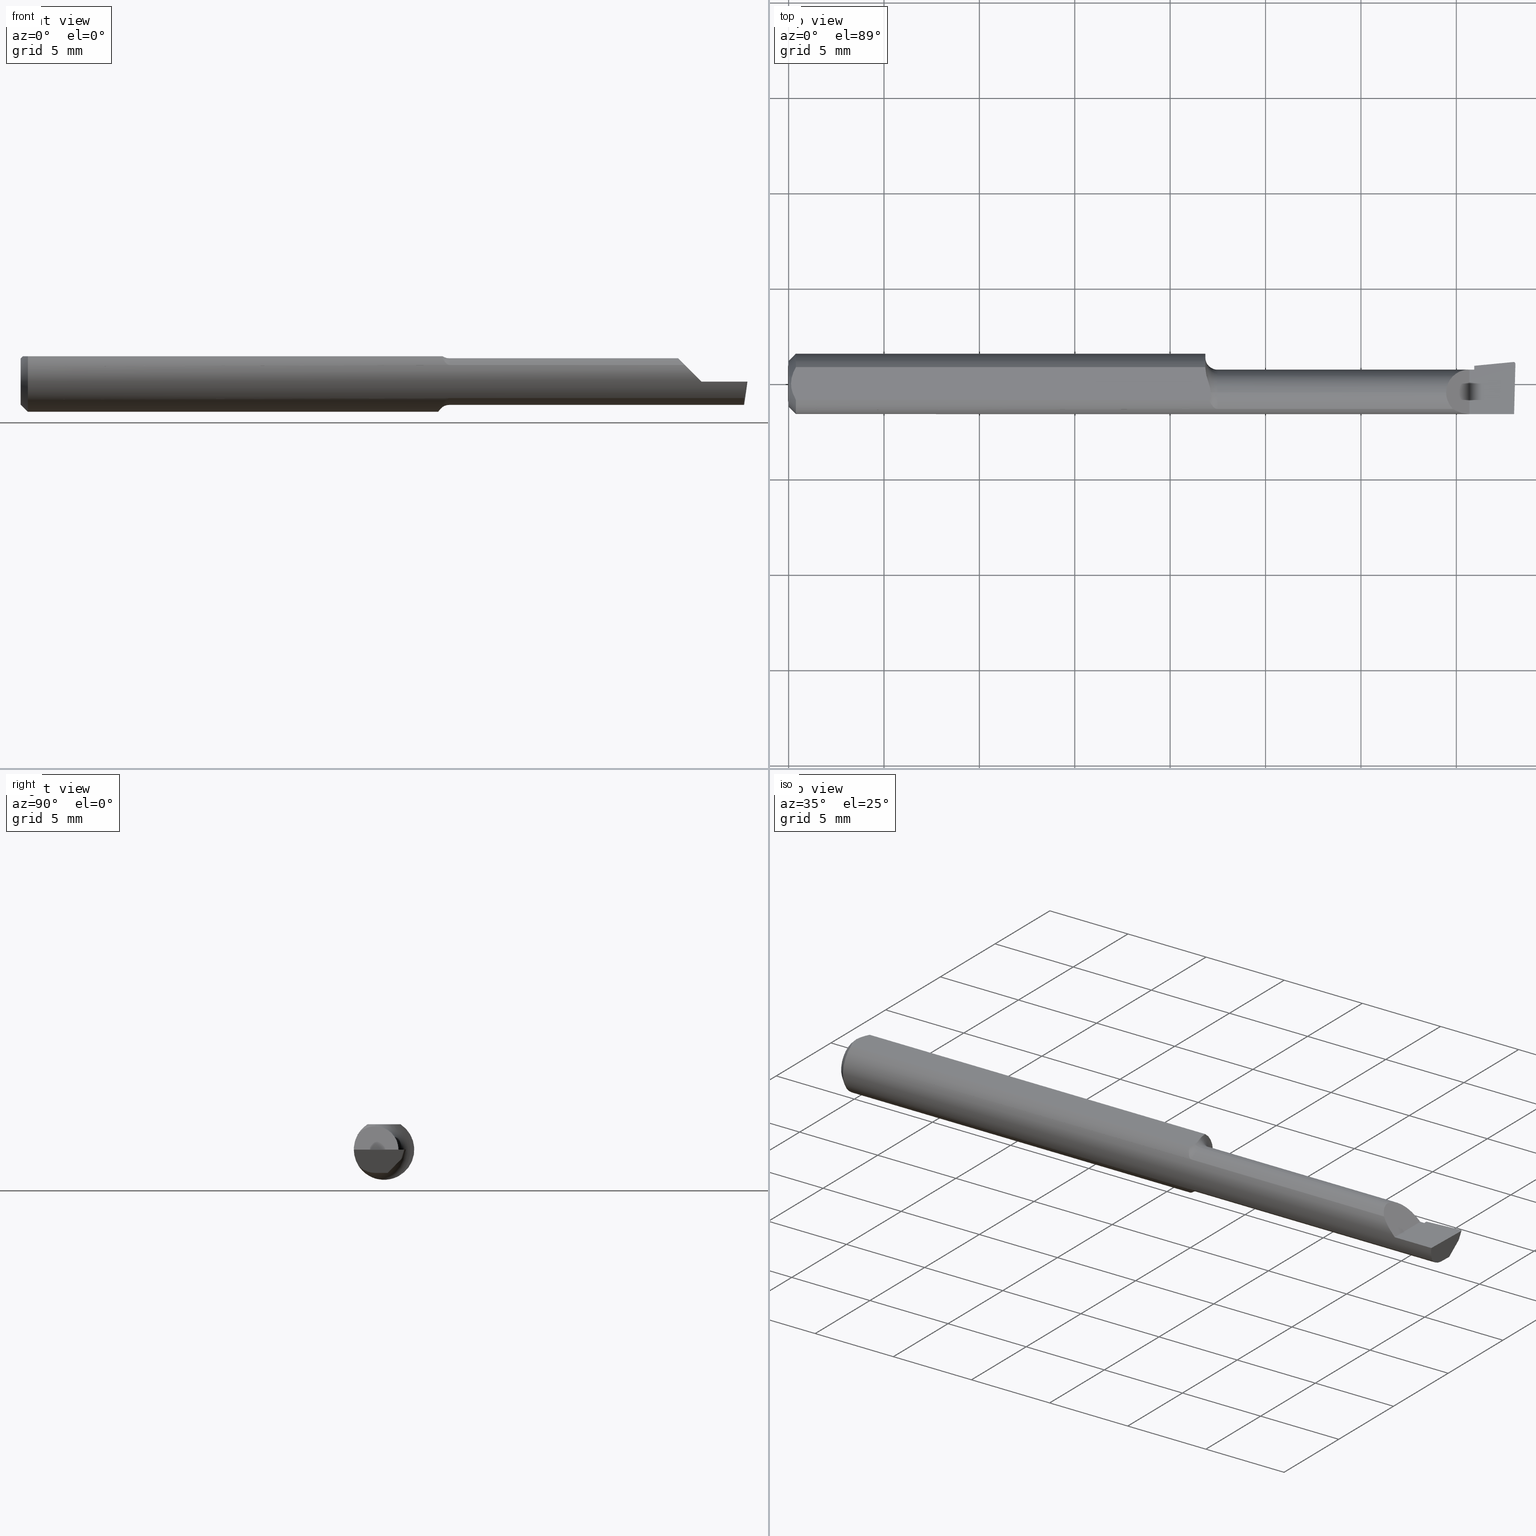
[diagram: canonical four-view strip — front | top / right | iso, engineering-drawing reading convention]
A machine part, canonical four-view strip (front | top / right | iso — engineering-drawing reading convention). The complete STEP part file that produces these views, byte-faithful:
ISO-10303-21;
HEADER;
FILE_DESCRIPTION (( 'STEP AP214' ),
    '1' );
FILE_NAME ('B110600R.STEP',
    '2020-05-08T22:34:26',
    ( '' ),
    ( '' ),
    'SwSTEP 2.0',
    'SolidWorks 2018',
    '' );
FILE_SCHEMA (( 'AUTOMOTIVE_DESIGN' ));
ENDSEC;

DATA;
#1 = EDGE_LOOP ( 'NONE', ( #11, #721, #91, #776, #666, #747, #256, #222 ) ) ;
#2 = ADVANCED_FACE ( 'NONE', ( #27 ), #545, .F. ) ;
#3 = PRESENTATION_STYLE_ASSIGNMENT (( #269 ) ) ;
#4 = CARTESIAN_POINT ( 'NONE',  ( 0.8697417421283761829, -0.03819491529868388607, 0.04955034320923033808 ) ) ;
#5 = AXIS2_PLACEMENT_3D ( 'NONE', #737, #307, #496 ) ;
#6 = VECTOR ( 'NONE', #290, 39.37007874015748143 ) ;
#7 = ADVANCED_FACE ( 'NONE', ( #70 ), #92, .T. ) ;
#8 = AXIS2_PLACEMENT_3D ( 'NONE', #373, #783, #436 ) ;
#9 = CARTESIAN_POINT ( 'NONE',  ( 1.509953961983671489, 0.04660845752520201279, 0.0000000000000000000 ) ) ;
#10 = CARTESIAN_POINT ( 'NONE',  ( 1.415000000000000036, 0.03746543090320910568, 0.0000000000000000000 ) ) ;
#11 = ORIENTED_EDGE ( 'NONE', *, *, #765, .T. ) ;
#12 = CIRCLE ( 'NONE', #53, 0.04805000000000000243 ) ;
#13 = UNCERTAINTY_MEASURE_WITH_UNIT (LENGTH_MEASURE( 1.000000000000000082E-05 ), #714, 'distance_accuracy_value', 'NONE');
#14 = EDGE_CURVE ( 'NONE', #451, #207, #110, .T. ) ;
#15 = EDGE_CURVE ( 'NONE', #18, #74, #47, .T. ) ;
#16 = CARTESIAN_POINT ( 'NONE',  ( 0.8709817975471366713, -0.01840000000000274055, 0.05235000000000000070 ) ) ;
#17 = DIRECTION ( 'NONE',  ( 0.0000000000000000000, 0.0000000000000000000, 1.000000000000000000 ) ) ;
#18 = VERTEX_POINT ( 'NONE', #669 ) ;
#19 = ORIENTED_EDGE ( 'NONE', *, *, #119, .T. ) ;
#20 =( LENGTH_UNIT ( ) NAMED_UNIT ( * ) SI_UNIT ( $, .METRE. ) );
#21 = ORIENTED_EDGE ( 'NONE', *, *, #432, .T. ) ;
#22 = FILL_AREA_STYLE ('',( #324 ) ) ;
#23 = DIRECTION ( 'NONE',  ( -0.0000000000000000000, 0.0000000000000000000, 1.000000000000000000 ) ) ;
#24 = CYLINDRICAL_SURFACE ( 'NONE', #710, 0.04804999999999996774 ) ;
#25 = CARTESIAN_POINT ( 'NONE',  ( 1.405000000000000249, -0.2500000000000000555, 1.163414459189982046E-17 ) ) ;
#26 = AXIS2_PLACEMENT_3D ( 'NONE', #668, #165, #718 ) ;
#27 = FACE_OUTER_BOUND ( 'NONE', #735, .T. ) ;
#28 = CARTESIAN_POINT ( 'NONE',  ( 1.495634880358090335, 0.04522968678441208201, 5.345729797359908772E-19 ) ) ;
#29 = DIRECTION ( 'NONE',  ( -1.000000000000000000, -0.0000000000000000000, -0.0000000000000000000 ) ) ;
#30 = EDGE_CURVE ( 'NONE', #104, #182, #181, .T. ) ;
#31 = VERTEX_POINT ( 'NONE', #773 ) ;
#32 = VECTOR ( 'NONE', #251, 39.37007874015748143 ) ;
#33 = B_SPLINE_CURVE_WITH_KNOTS ( 'NONE', 3,
 ( #101, #659, #342, #107, #349, #661, #285, #767, #345, #712 ),
 .UNSPECIFIED., .F., .F.,
 ( 4, 2, 2, 2, 4 ),
 ( 0.008710904206567299940, 0.009350419755586255460, 0.009510298642840996075, 0.009670177530095734955, 0.009989935304605212715 ),
 .UNSPECIFIED. ) ;
#34 = CARTESIAN_POINT ( 'NONE',  ( 0.0000000000000000000, -0.01839999999999999275, -0.04804999999999996774 ) ) ;
#35 = VECTOR ( 'NONE', #431, 39.37007874015748854 ) ;
#36 = ORIENTED_EDGE ( 'NONE', *, *, #364, .T. ) ;
#37 = PRODUCT ( 'B110600R', 'B110600R', '', ( #579 ) ) ;
#38 = AXIS2_PLACEMENT_3D ( 'NONE', #228, #614, #355 ) ;
#39 = APPLICATION_CONTEXT ( 'automotive_design' ) ;
#40 = CARTESIAN_POINT ( 'NONE',  ( 1.150000000000000133, -0.05210000000000008374, -0.03425072991922931825 ) ) ;
#41 = ORIENTED_EDGE ( 'NONE', *, *, #447, .T. ) ;
#42 = CIRCLE ( 'NONE', #777, 0.04804999999999993304 ) ;
#43 = APPLICATION_PROTOCOL_DEFINITION ( 'draft international standard', 'automotive_design', 1998, #39 ) ;
#44 = CARTESIAN_POINT ( 'NONE',  ( 0.0000000000000000000, 0.0000000000000000000, 0.0000000000000000000 ) ) ;
#45 = LINE ( 'NONE', #172, #649 ) ;
#46 = ORIENTED_EDGE ( 'NONE', *, *, #30, .F. ) ;
#47 = CIRCLE ( 'NONE', #781, 0.04734999999999964237 ) ;
#48 = DIRECTION ( 'NONE',  ( -0.0000000000000000000, 1.000000000000000000, 1.224646799147353207E-16 ) ) ;
#49 = CARTESIAN_POINT ( 'NONE',  ( 1.497451155291631864, 0.008070764392015433372, -0.04804999999999998855 ) ) ;
#50 = DIRECTION ( 'NONE',  ( 1.000000000000000000, 0.0000000000000000000, 0.0000000000000000000 ) ) ;
#51 = CARTESIAN_POINT ( 'NONE',  ( 1.493798075755721211, 0.04075279661035104140, -0.01399999999999999856 ) ) ;
#52 = ORIENTED_EDGE ( 'NONE', *, *, #558, .T. ) ;
#53 = AXIS2_PLACEMENT_3D ( 'NONE', #312, #739, #381 ) ;
#54 = CARTESIAN_POINT ( 'NONE',  ( 0.8647104858884211431, -0.02227973916747851349, -0.05837485801745211089 ) ) ;
#55 = VERTEX_POINT ( 'NONE', #171 ) ;
#56 = LINE ( 'NONE', #243, #386 ) ;
#57 = CARTESIAN_POINT ( 'NONE',  ( 0.006064493299689855191, 0.01189382783781397362, 0.05235000000000000070 ) ) ;
#58 = DIRECTION ( 'NONE',  ( -1.000000000000000000, -0.0000000000000000000, -0.0000000000000000000 ) ) ;
#59 = EDGE_CURVE ( 'NONE', #636, #66, #208, .T. ) ;
#60 = CIRCLE ( 'NONE', #287, 0.06235000000000000264 ) ;
#61 = EDGE_CURVE ( 'NONE', #632, #86, #749, .T. ) ;
#62 = CARTESIAN_POINT ( 'NONE',  ( 0.009669996313769786342, 0.02323004575534281385, 0.05234999999999998682 ) ) ;
#63 = ORIENTED_EDGE ( 'NONE', *, *, #679, .T. ) ;
#64 = CIRCLE ( 'NONE', #621, 0.02500000000000000486 ) ;
#65 = DIRECTION ( 'NONE',  ( 0.0000000000000000000, 0.0000000000000000000, 1.000000000000000000 ) ) ;
#66 = VERTEX_POINT ( 'NONE', #358 ) ;
#67 = FACE_OUTER_BOUND ( 'NONE', #173, .T. ) ;
#68 = CARTESIAN_POINT ( 'NONE',  ( 0.01500000000000185039, -0.03386738844380016850, 0.05235000000000000070 ) ) ;
#69 = CARTESIAN_POINT ( 'NONE',  ( 1.370749270080770632, -0.05210000000000011150, 0.03425072991922930438 ) ) ;
#70 = FACE_OUTER_BOUND ( 'NONE', #566, .T. ) ;
#71 = ADVANCED_FACE ( 'NONE', ( #546 ), #231, .T. ) ;
#72 = TOROIDAL_SURFACE ( 'NONE', #26, 0.07304999999999993443, 0.02500000000000000486 ) ;
#73 = PLANE ( 'NONE',  #5 ) ;
#74 = VERTEX_POINT ( 'NONE', #771 ) ;
#75 = CARTESIAN_POINT ( 'NONE',  ( 0.8715797100125448615, -0.04200879032723227324, 0.04631940421101464478 ) ) ;
#76 = ADVANCED_FACE ( 'NONE', ( #325 ), #775, .T. ) ;
#77 = ORIENTED_EDGE ( 'NONE', *, *, #278, .T. ) ;
#78 = ORIENTED_EDGE ( 'NONE', *, *, #741, .F. ) ;
#79 = ORIENTED_EDGE ( 'NONE', *, *, #179, .F. ) ;
#80 = EDGE_CURVE ( 'NONE', #706, #112, #60, .T. ) ;
#81 =( GEOMETRIC_REPRESENTATION_CONTEXT ( 3 ) GLOBAL_UNCERTAINTY_ASSIGNED_CONTEXT ( ( #99 ) ) GLOBAL_UNIT_ASSIGNED_CONTEXT ( ( #152, #117, #334 ) ) REPRESENTATION_CONTEXT ( 'NONE', 'WORKASPACE' ) );
#82 = CARTESIAN_POINT ( 'NONE',  ( 1.497145952778605960, 0.03443421182165954525, -0.02084524377084987293 ) ) ;
#83 = ORIENTED_EDGE ( 'NONE', *, *, #680, .T. ) ;
#84 = CARTESIAN_POINT ( 'NONE',  ( 0.8850000000000001199, -0.01839999999999999969, 0.0000000000000000000 ) ) ;
#85 = CARTESIAN_POINT ( 'NONE',  ( 0.8850000000000001199, -0.05210000000000019477, -0.03425072991922917254 ) ) ;
#86 = VERTEX_POINT ( 'NONE', #421 ) ;
#87 = ORIENTED_EDGE ( 'NONE', *, *, #180, .T. ) ;
#88 = CARTESIAN_POINT ( 'NONE',  ( 0.01500000000000000465, 0.03386738844375223462, 0.05234999999999997988 ) ) ;
#89 = CARTESIAN_POINT ( 'NONE',  ( 0.8639435274990673319, -0.01839999999999995459, -0.05957316929625283003 ) ) ;
#90 = CARTESIAN_POINT ( 'NONE',  ( 1.405000000000000249, 0.02964999999999991601, 1.163414459189982046E-17 ) ) ;
#91 = ORIENTED_EDGE ( 'NONE', *, *, #695, .T. ) ;
#92 = CYLINDRICAL_SURFACE ( 'NONE', #38, 0.004000000000000004420 ) ;
#93 = ORIENTED_EDGE ( 'NONE', *, *, #752, .T. ) ;
#94 = ORIENTED_EDGE ( 'NONE', *, *, #30, .T. ) ;
#95 = PLANE ( 'NONE',  #272 ) ;
#96 = VERTEX_POINT ( 'NONE', #121 ) ;
#97 = FACE_OUTER_BOUND ( 'NONE', #306, .T. ) ;
#98 = DIRECTION ( 'NONE',  ( -1.000000000000000000, -0.0000000000000000000, -0.0000000000000000000 ) ) ;
#99 = UNCERTAINTY_MEASURE_WITH_UNIT (LENGTH_MEASURE( 1.000000000000000082E-05 ), #152, 'distance_accuracy_value', 'NONE');
#100 = EDGE_CURVE ( 'NONE', #130, #701, #534, .T. ) ;
#101 = CARTESIAN_POINT ( 'NONE',  ( 0.8600000000000000977, 0.03254879782683779005, 0.05235000000000000070 ) ) ;
#102 = EDGE_CURVE ( 'NONE', #74, #112, #601, .T. ) ;
#103 =( BOUNDED_CURVE ( )  B_SPLINE_CURVE ( 3, ( #453, #145, #450, #82 ),
 .UNSPECIFIED., .F., .F. ) 
 B_SPLINE_CURVE_WITH_KNOTS ( ( 4, 4 ),
 ( 3.156599629463130441, 4.715023529952362402 ),
 .UNSPECIFIED. ) 
 CURVE ( )  GEOMETRIC_REPRESENTATION_ITEM ( )  RATIONAL_B_SPLINE_CURVE ( ( 1.000000000000000000, 0.8076450242550470282, 0.8076450242550470282, 1.000000000000000000 ) ) 
 REPRESENTATION_ITEM ( '' )  );
#104 = VERTEX_POINT ( 'NONE', #750 ) ;
#105 = ORIENTED_EDGE ( 'NONE', *, *, #318, .T. ) ;
#106 = VECTOR ( 'NONE', #409, 39.37007874015748143 ) ;
#107 = CARTESIAN_POINT ( 'NONE',  ( 0.8657332775895891785, 0.004426912553965744665, 0.05234999999999998682 ) ) ;
#108 = CARTESIAN_POINT ( 'NONE',  ( 1.497171920470529161, -0.06235000000000005121, 3.552677088412748576E-19 ) ) ;
#109 = EDGE_LOOP ( 'NONE', ( #569, #398, #411, #63 ) ) ;
#110 = LINE ( 'NONE', #302, #35 ) ;
#111 = DIRECTION ( 'NONE',  ( -1.000000000000000000, -0.0000000000000000000, -0.0000000000000000000 ) ) ;
#112 = VERTEX_POINT ( 'NONE', #395 ) ;
#113 = PLANE ( 'NONE',  #736 ) ;
#114 = EDGE_LOOP ( 'NONE', ( #516, #490, #124, #540 ) ) ;
#115 = ORIENTED_EDGE ( 'NONE', *, *, #119, .F. ) ;
#116 = ORIENTED_EDGE ( 'NONE', *, *, #161, .F. ) ;
#117 =( NAMED_UNIT ( * ) PLANE_ANGLE_UNIT ( ) SI_UNIT ( $, .RADIAN. ) );
#118 = CARTESIAN_POINT ( 'NONE',  ( 0.8780636144450135738, -0.04963912592730911066, -0.03775824298307028926 ) ) ;
#119 = EDGE_CURVE ( 'NONE', #112, #238, #317, .T. ) ;
#120 = DIRECTION ( 'NONE',  ( -0.0000000000000000000, 0.0000000000000000000, 1.000000000000000000 ) ) ;
#121 = CARTESIAN_POINT ( 'NONE',  ( 0.8850000000000001199, -0.05210000000000020171, 0.03425072991922915866 ) ) ;
#122 = CYLINDRICAL_SURFACE ( 'NONE', #457, 0.06235000000000000264 ) ;
#123 = CARTESIAN_POINT ( 'NONE',  ( 0.8690023436943704604, -0.03635371779854205260, -0.05080473676934860877 ) ) ;
#124 = ORIENTED_EDGE ( 'NONE', *, *, #394, .T. ) ;
#125 = VERTEX_POINT ( 'NONE', #266 ) ;
#126 = AXIS2_PLACEMENT_3D ( 'NONE', #471, #157, #120 ) ;
#127 = VERTEX_POINT ( 'NONE', #608 ) ;
#128 = CARTESIAN_POINT ( 'NONE',  ( 0.004999999999989946514, 7.898418262501303575E-16, 0.05235000000000000070 ) ) ;
#129 = SURFACE_STYLE_FILL_AREA ( #22 ) ;
#130 = VERTEX_POINT ( 'NONE', #85 ) ;
#131 = CARTESIAN_POINT ( 'NONE',  ( 0.009678036133109314473, -0.02325481837211496733, 0.05235000000000000070 ) ) ;
#132 = ORIENTED_EDGE ( 'NONE', *, *, #102, .F. ) ;
#133 = ADVANCED_FACE ( 'NONE', ( #162 ), #122, .T. ) ;
#134 = VECTOR ( 'NONE', #648, 39.37007874015748143 ) ;
#135 = CARTESIAN_POINT ( 'NONE',  ( 1.493880948194812541, 0.04095478369585273809, -0.01336835189448956629 ) ) ;
#136 = ADVANCED_FACE ( 'NONE', ( #631 ), #748, .F. ) ;
#137 = CARTESIAN_POINT ( 'NONE',  ( 0.8766024100878114789, -0.04843664215652596777, 0.03931692004732154772 ) ) ;
#138 = LINE ( 'NONE', #209, #356 ) ;
#139 = CARTESIAN_POINT ( 'NONE',  ( 1.494045589437462906, 0.04076786057889449782, -0.01400903864505087353 ) ) ;
#140 = FACE_OUTER_BOUND ( 'NONE', #330, .T. ) ;
#141 = EDGE_LOOP ( 'NONE', ( #699, #202, #198 ) ) ;
#142 = DIRECTION ( 'NONE',  ( 0.0000000000000000000, 0.2936076258024064023, 0.9559260233253794592 ) ) ;
#143 = ORIENTED_EDGE ( 'NONE', *, *, #61, .F. ) ;
#144 = LINE ( 'NONE', #206, #406 ) ;
#145 = CARTESIAN_POINT ( 'NONE',  ( 1.496461277308444027, 0.04065349357661089680, -0.01436668378927332887 ) ) ;
#146 = EDGE_CURVE ( 'NONE', #55, #361, #103, .T. ) ;
#147 = EDGE_CURVE ( 'NONE', #472, #255, #300, .T. ) ;
#148 = FACE_OUTER_BOUND ( 'NONE', #114, .T. ) ;
#149 = DIRECTION ( 'NONE',  ( 0.0000000000000000000, 0.0000000000000000000, 1.000000000000000000 ) ) ;
#150 = DIRECTION ( 'NONE',  ( 0.0000000000000000000, 0.0000000000000000000, 1.000000000000000000 ) ) ;
#151 = EDGE_LOOP ( 'NONE', ( #385, #348, #663, #513 ) ) ;
#152 =( CONVERSION_BASED_UNIT ( 'INCH', #273 ) LENGTH_UNIT ( ) NAMED_UNIT ( #507 ) );
#153 = CARTESIAN_POINT ( 'NONE',  ( 1.497145952778605960, 0.03443421182165954525, -0.02084524377084987293 ) ) ;
#154 = APPLICATION_PROTOCOL_DEFINITION ( 'draft international standard', 'automotive_design', 1998, #327 ) ;
#155 = ORIENTED_EDGE ( 'NONE', *, *, #15, .T. ) ;
#156 = COLOUR_RGB ( '',0.7529411764705882248, 0.7529411764705882248, 0.7529411764705882248 ) ;
#157 = DIRECTION ( 'NONE',  ( -1.000000000000000000, 0.0000000000000000000, -0.0000000000000000000 ) ) ;
#158 = DIRECTION ( 'NONE',  ( -0.0000000000000000000, 1.000000000000000000, -0.0000000000000000000 ) ) ;
#159 = CARTESIAN_POINT ( 'NONE',  ( 1.370749270080770632, -0.05210000000000011150, 0.03425072991922930438 ) ) ;
#160 = ORIENTED_EDGE ( 'NONE', *, *, #512, .F. ) ;
#161 = EDGE_CURVE ( 'NONE', #514, #66, #559, .T. ) ;
#162 = FACE_OUTER_BOUND ( 'NONE', #184, .T. ) ;
#163 =( BOUNDED_CURVE ( )  B_SPLINE_CURVE ( 3, ( #412, #605, #469, #108 ),
 .UNSPECIFIED., .F., .T. ) 
 B_SPLINE_CURVE_WITH_KNOTS ( ( 4, 4 ),
 ( 0.7791845851203687001, 1.360746882514706213 ),
 .UNSPECIFIED. ) 
 CURVE ( )  GEOMETRIC_REPRESENTATION_ITEM ( )  RATIONAL_B_SPLINE_CURVE ( ( 1.000000000000000000, 0.9720134746468969134, 0.9720134746468969134, 1.000000000000000000 ) ) 
 REPRESENTATION_ITEM ( '' )  );
#164 = CIRCLE ( 'NONE', #258, 0.04804999999999993304 ) ;
#165 = DIRECTION ( 'NONE',  ( -1.000000000000000000, -0.0000000000000000000, -0.0000000000000000000 ) ) ;
#166 = CARTESIAN_POINT ( 'NONE',  ( 0.8600000000000000977, 0.03016902173913018487, -0.05456512281030705819 ) ) ;
#167 = CARTESIAN_POINT ( 'NONE',  ( 1.500000000000000222, -0.01839999999999999969, -0.04804999999999998855 ) ) ;
#168 = ORIENTED_EDGE ( 'NONE', *, *, #765, .F. ) ;
#169 = CARTESIAN_POINT ( 'NONE',  ( 1.485355811419347694, 0.01928498759140766586, -0.08118965066171526801 ) ) ;
#170 = LINE ( 'NONE', #758, #308 ) ;
#171 = CARTESIAN_POINT ( 'NONE',  ( 1.494167560590871746, 0.04076208604347212466, -0.01402709660331436479 ) ) ;
#172 = CARTESIAN_POINT ( 'NONE',  ( 0.0000000000000000000, 0.03386738844375223462, 0.05234999999999997988 ) ) ;
#173 = EDGE_LOOP ( 'NONE', ( #254, #519, #188, #449, #210 ) ) ;
#174 = CARTESIAN_POINT ( 'NONE',  ( 1.405000000000000249, 0.02964999999999991601, 1.163414459189982046E-17 ) ) ;
#175 = CARTESIAN_POINT ( 'NONE',  ( 0.8810018602471946236, -0.05138041438525058763, -0.03535223831097206171 ) ) ;
#176 = DIRECTION ( 'NONE',  ( 0.0000000000000000000, 0.0000000000000000000, -1.000000000000000000 ) ) ;
#177 = CONICAL_SURFACE ( 'NONE', #760, 0.06235000000000000264, 0.7853981633974601584 ) ;
#178 = PLANE ( 'NONE',  #723 ) ;
#179 = EDGE_CURVE ( 'NONE', #472, #636, #33, .T. ) ;
#180 = EDGE_CURVE ( 'NONE', #478, #399, #193, .T. ) ;
#181 = LINE ( 'NONE', #49, #286 ) ;
#182 = VERTEX_POINT ( 'NONE', #637 ) ;
#183 = ORIENTED_EDGE ( 'NONE', *, *, #679, .F. ) ;
#184 = EDGE_LOOP ( 'NONE', ( #423, #438, #21, #326, #183, #585, #441, #115, #582, #733, #764, #437, #613 ) ) ;
#185 = CARTESIAN_POINT ( 'NONE',  ( 0.004999999999998894218, -0.005957634400466962389, 0.05235000000000000070 ) ) ;
#186 = ADVANCED_FACE ( 'NONE', ( #504 ), #371, .T. ) ;
#187 = ORIENTED_EDGE ( 'NONE', *, *, #192, .T. ) ;
#188 = ORIENTED_EDGE ( 'NONE', *, *, #680, .F. ) ;
#189 = AXIS2_PLACEMENT_3D ( 'NONE', #769, #589, #404 ) ;
#190 = ADVANCED_FACE ( 'NONE', ( #201 ), #113, .F. ) ;
#191 = CARTESIAN_POINT ( 'NONE',  ( 0.8801117046627789930, -0.05090166660896887352, 0.03601608024180039114 ) ) ;
#192 = EDGE_CURVE ( 'NONE', #18, #604, #315, .T. ) ;
#193 = LINE ( 'NONE', #282, #339 ) ;
#194 = DIRECTION ( 'NONE',  ( -1.000000000000000000, -0.0000000000000000000, -0.0000000000000000000 ) ) ;
#195 = CARTESIAN_POINT ( 'NONE',  ( 1.499880855614020625, 0.04110005946548993955, 2.844601328296306959E-20 ) ) ;
#196 = DIRECTION ( 'NONE',  ( -1.000000000000000000, 0.0000000000000000000, 1.224646799147350495E-16 ) ) ;
#197 = CARTESIAN_POINT ( 'NONE',  ( 0.8706711879428687961, -0.02367561104898160962, 0.05235000000000000070 ) ) ;
#198 = ORIENTED_EDGE ( 'NONE', *, *, #716, .T. ) ;
#199 = CARTESIAN_POINT ( 'NONE',  ( 1.376852961672026865, 0.02964999999999996805, 0.02814703832797276276 ) ) ;
#200 = CARTESIAN_POINT ( 'NONE',  ( 0.01500000000000000465, 0.0000000000000000000, 0.0000000000000000000 ) ) ;
#201 = FACE_OUTER_BOUND ( 'NONE', #652, .T. ) ;
#202 = ORIENTED_EDGE ( 'NONE', *, *, #220, .T. ) ;
#203 = DIRECTION ( 'NONE',  ( 2.429359850419095176E-34, 4.268512490100411895E-17, 1.000000000000000000 ) ) ;
#204 = AXIS2_PLACEMENT_3D ( 'NONE', #296, #241, #176 ) ;
#205 = FACE_OUTER_BOUND ( 'NONE', #401, .T. ) ;
#206 = CARTESIAN_POINT ( 'NONE',  ( 1.415000000000000036, 0.01335851473338080936, -0.03441620828959360973 ) ) ;
#207 = VERTEX_POINT ( 'NONE', #720 ) ;
#208 = CIRCLE ( 'NONE', #713, 0.02500000000000000486 ) ;
#209 = CARTESIAN_POINT ( 'NONE',  ( 1.415000000000000036, 0.03394043341024438609, -0.01147666661066422747 ) ) ;
#210 = ORIENTED_EDGE ( 'NONE', *, *, #716, .F. ) ;
#211 = SURFACE_SIDE_STYLE ('',( #129 ) ) ;
#212 = DIRECTION ( 'NONE',  ( 0.0000000000000000000, 0.6963153109074924352, 0.7177360153954949196 ) ) ;
#213 = ORIENTED_EDGE ( 'NONE', *, *, #179, .T. ) ;
#214 = AXIS2_PLACEMENT_3D ( 'NONE', #564, #744, #388 ) ;
#215 = SURFACE_STYLE_USAGE ( .BOTH. , #211 ) ;
#216 = PLANE ( 'NONE',  #189 ) ;
#217 = LINE ( 'NONE', #299, #528 ) ;
#218 = DIRECTION ( 'NONE',  ( 0.0000000000000000000, 0.0000000000000000000, -1.000000000000000000 ) ) ;
#219 = B_SPLINE_CURVE_WITH_KNOTS ( 'NONE', 3,
 ( #587, #460, #270, #645, #333, #508 ),
 .UNSPECIFIED., .F., .F.,
 ( 4, 2, 4 ),
 ( 0.001277683611626134232, 0.001926233481642343698, 0.002574783351658553165 ),
 .UNSPECIFIED. ) ;
#220 = EDGE_CURVE ( 'NONE', #701, #31, #64, .T. ) ;
#221 = EDGE_CURVE ( 'NONE', #86, #55, #223, .T. ) ;
#222 = ORIENTED_EDGE ( 'NONE', *, *, #432, .F. ) ;
#223 = LINE ( 'NONE', #169, #380 ) ;
#224 = DIRECTION ( 'NONE',  ( 0.0000000000000000000, 0.0000000000000000000, 1.000000000000000000 ) ) ;
#225 = CARTESIAN_POINT ( 'NONE',  ( 1.415000000000000036, 0.007456147106387353563, -0.04050015008383121146 ) ) ;
#226 = ORIENTED_EDGE ( 'NONE', *, *, #221, .T. ) ;
#227 = VECTOR ( 'NONE', #599, 39.37007874015748143 ) ;
#228 = CARTESIAN_POINT ( 'NONE',  ( 1.485355811419347694, 0.01547504541840015631, -0.07997131547042395094 ) ) ;
#229 =( CONVERSION_BASED_UNIT ( 'INCH', #628 ) LENGTH_UNIT ( ) NAMED_UNIT ( #696 ) );
#230 = EDGE_LOOP ( 'NONE', ( #416, #378 ) ) ;
#231 = PLANE ( 'NONE',  #248 ) ;
#232 = EDGE_LOOP ( 'NONE', ( #105, #369, #93, #422 ) ) ;
#233 = AXIS2_PLACEMENT_3D ( 'NONE', #702, #328, #753 ) ;
#234 = DIRECTION ( 'NONE',  ( 1.000000000000000000, 0.0000000000000000000, 0.0000000000000000000 ) ) ;
#235 = ORIENTED_EDGE ( 'NONE', *, *, #147, .T. ) ;
#236 =( NAMED_UNIT ( * ) PLANE_ANGLE_UNIT ( ) SI_UNIT ( $, .RADIAN. ) );
#237 = CARTESIAN_POINT ( 'NONE',  ( 0.8850000000000001199, -0.05210000000000019477, -0.03425072991922917254 ) ) ;
#238 = VERTEX_POINT ( 'NONE', #417 ) ;
#239 = EDGE_CURVE ( 'NONE', #706, #552, #45, .T. ) ;
#240 =( NAMED_UNIT ( * ) SI_UNIT ( $, .STERADIAN. ) SOLID_ANGLE_UNIT ( ) );
#241 = DIRECTION ( 'NONE',  ( 1.000000000000000000, 0.0000000000000000000, 0.0000000000000000000 ) ) ;
#242 = DIRECTION ( 'NONE',  ( 0.0000000000000000000, -1.000000000000000000, 0.0000000000000000000 ) ) ;
#243 = CARTESIAN_POINT ( 'NONE',  ( 0.8600000000000000977, 0.1123499999999999915, 0.05234999999999998682 ) ) ;
#244 = CARTESIAN_POINT ( 'NONE',  ( 1.415000000000000036, 0.03746543090321039632, 1.856802933193678953E-16 ) ) ;
#245 = VERTEX_POINT ( 'NONE', #603 ) ;
#246 = ORIENTED_EDGE ( 'NONE', *, *, #467, .T. ) ;
#247 = DIRECTION ( 'NONE',  ( 0.1240019227989365286, 0.3022330132596650065, 0.9451342385281308323 ) ) ;
#248 = AXIS2_PLACEMENT_3D ( 'NONE', #10, #366, #727 ) ;
#249 = CARTESIAN_POINT ( 'NONE',  ( 1.493233423732482024, -0.05210000000000008374, -0.03425072991922931825 ) ) ;
#250 = ORIENTED_EDGE ( 'NONE', *, *, #146, .F. ) ;
#251 = DIRECTION ( 'NONE',  ( 0.0000000000000000000, -0.6963153109074924352, -0.7177360153954949196 ) ) ;
#252 = ADVANCED_FACE ( 'NONE', ( #311 ), #72, .F. ) ;
#253 = ORIENTED_EDGE ( 'NONE', *, *, #263, .T. ) ;
#254 = ORIENTED_EDGE ( 'NONE', *, *, #263, .F. ) ;
#255 = VERTEX_POINT ( 'NONE', #166 ) ;
#256 = ORIENTED_EDGE ( 'NONE', *, *, #394, .F. ) ;
#257 = CARTESIAN_POINT ( 'NONE',  ( 0.8836283801985740372, -0.05210000000115982272, 0.03425072991746568041 ) ) ;
#258 = AXIS2_PLACEMENT_3D ( 'NONE', #84, #509, #149 ) ;
#259 = CARTESIAN_POINT ( 'NONE',  ( 1.496007920276503533, 0.04524764111161382746, -3.414809992080329023E-17 ) ) ;
#260 = CARTESIAN_POINT ( 'NONE',  ( 1.493233423732482024, -0.05210000000000008374, -0.03425072991922931825 ) ) ;
#261 = DIRECTION ( 'NONE',  ( 0.0000000000000000000, 0.9524855432518762877, -0.3045837978228287946 ) ) ;
#262 = EDGE_CURVE ( 'NONE', #104, #361, #517, .T. ) ;
#263 = EDGE_CURVE ( 'NONE', #125, #31, #291, .T. ) ;
#264 = ORIENTED_EDGE ( 'NONE', *, *, #146, .T. ) ;
#265 = CARTESIAN_POINT ( 'NONE',  ( 0.8689259844007443112, -0.03134776909451142402, 0.05235000000000000070 ) ) ;
#266 = CARTESIAN_POINT ( 'NONE',  ( 1.415000000000000036, -0.01839999999999999969, -0.04804999999999998855 ) ) ;
#267 = CARTESIAN_POINT ( 'NONE',  ( 1.415000000000000036, 0.03746543090320910568, 0.0000000000000000000 ) ) ;
#268 = ORIENTED_EDGE ( 'NONE', *, *, #14, .T. ) ;
#269 = SURFACE_STYLE_USAGE ( .BOTH. , #293 ) ;
#270 = CARTESIAN_POINT ( 'NONE',  ( 0.8613962500143419465, -0.002002297547419349538, -0.06287403108402093987 ) ) ;
#271 = VERTEX_POINT ( 'NONE', #225 ) ;
#272 = AXIS2_PLACEMENT_3D ( 'NONE', #759, #461, #212 ) ;
#273 = LENGTH_MEASURE_WITH_UNIT ( LENGTH_MEASURE( 0.02539999999999999897 ), #711 );
#274 =( LENGTH_UNIT ( ) NAMED_UNIT ( * ) SI_UNIT ( $, .METRE. ) );
#275 = CARTESIAN_POINT ( 'NONE',  ( 2.249639673992775738E-32, -0.06234999999999999570, 1.836970198721025250E-16 ) ) ;
#276 = VECTOR ( 'NONE', #515, 39.37007874015748143 ) ;
#277 = DIRECTION ( 'NONE',  ( -1.000000000000000000, -0.0000000000000000000, -0.0000000000000000000 ) ) ;
#278 = EDGE_CURVE ( 'NONE', #383, #245, #571, .T. ) ;
#279 = ORIENTED_EDGE ( 'NONE', *, *, #752, .F. ) ;
#280 = ORIENTED_EDGE ( 'NONE', *, *, #343, .F. ) ;
#281 = STYLED_ITEM ( 'NONE', ( #3 ), #430 ) ;
#282 = CARTESIAN_POINT ( 'NONE',  ( 0.8348153170171558335, -0.01839999999999999969, 8.146162928567849885E-17 ) ) ;
#283 = PRESENTATION_STYLE_ASSIGNMENT (( #215 ) ) ;
#284 = UNCERTAINTY_MEASURE_WITH_UNIT (LENGTH_MEASURE( 1.000000000000000082E-05 ), #229, 'distance_accuracy_value', 'NONE');
#285 = CARTESIAN_POINT ( 'NONE',  ( 0.8684726880402972027, -0.003926822060867268642, 0.05235000000000000070 ) ) ;
#286 = VECTOR ( 'NONE', #419, 39.37007874015748854 ) ;
#287 = AXIS2_PLACEMENT_3D ( 'NONE', #725, #294, #671 ) ;
#288 = FILL_AREA_STYLE ('',( #332 ) ) ;
#289 = CARTESIAN_POINT ( 'NONE',  ( 1.498384822753113355, 0.04264131821163488767, -0.01250862198832625692 ) ) ;
#290 = DIRECTION ( 'NONE',  ( 0.7071067811865391350, 8.659560562355035164E-17, 0.7071067811865558994 ) ) ;
#291 = LINE ( 'NONE', #34, #106 ) ;
#292 = CARTESIAN_POINT ( 'NONE',  ( 0.8850000000000001199, -0.01839999999999999275, -0.07304999999999993443 ) ) ;
#293 = SURFACE_SIDE_STYLE ('',( #459 ) ) ;
#294 = DIRECTION ( 'NONE',  ( -1.000000000000000000, -0.0000000000000000000, -0.0000000000000000000 ) ) ;
#295 = AXIS2_PLACEMENT_3D ( 'NONE', #9, #506, #142 ) ;
#296 = CARTESIAN_POINT ( 'NONE',  ( 0.01500000000000000465, 0.0000000000000000000, 0.0000000000000000000 ) ) ;
#297 = EDGE_LOOP ( 'NONE', ( #403, #187, #595, #527, #132 ) ) ;
#298 =( BOUNDED_CURVE ( )  B_SPLINE_CURVE ( 3, ( #756, #458, #761, #407 ),
 .UNSPECIFIED., .F., .T. ) 
 B_SPLINE_CURVE_WITH_KNOTS ( ( 4, 4 ),
 ( 5.505891808168995816, 6.283185307179586232 ),
 .UNSPECIFIED. ) 
 CURVE ( )  GEOMETRIC_REPRESENTATION_ITEM ( )  RATIONAL_B_SPLINE_CURVE ( ( 1.000000000000000000, 0.9502818019828904728, 0.9502818019828904728, 1.000000000000000000 ) ) 
 REPRESENTATION_ITEM ( '' )  );
#299 = CARTESIAN_POINT ( 'NONE',  ( 1.415000000000000036, -0.01839999999999999969, -0.04804999999999998855 ) ) ;
#300 = CIRCLE ( 'NONE', #375, 0.07304999999999993443 ) ;
#301 = FACE_OUTER_BOUND ( 'NONE', #500, .T. ) ;
#302 = CARTESIAN_POINT ( 'NONE',  ( 1.510364203804932526, 0.04234793331252790366, -0.01399999999999999856 ) ) ;
#303 = EDGE_CURVE ( 'NONE', #554, #127, #163, .T. ) ;
#304 = EDGE_CURVE ( 'NONE', #554, #130, #726, .T. ) ;
#305 = CARTESIAN_POINT ( 'NONE',  ( 1.356949999999999878, -0.01839999999999999969, 0.04804999999999996774 ) ) ;
#306 = EDGE_LOOP ( 'NONE', ( #693, #619, #168, #678, #83, #493 ) ) ;
#307 = DIRECTION ( 'NONE',  ( 1.000000000000000000, 0.0000000000000000000, 0.0000000000000000000 ) ) ;
#308 = VECTOR ( 'NONE', #644, 39.37007874015748854 ) ;
#309 = CARTESIAN_POINT ( 'NONE',  ( 0.0000000000000000000, -0.01839999999999999969, 0.0000000000000000000 ) ) ;
#310 = ADVANCED_FACE ( 'NONE', ( #97 ), #216, .F. ) ;
#311 = FACE_OUTER_BOUND ( 'NONE', #151, .T. ) ;
#312 = CARTESIAN_POINT ( 'NONE',  ( 1.415000000000000036, -0.01839999999999999969, 0.0000000000000000000 ) ) ;
#313 = ORIENTED_EDGE ( 'NONE', *, *, #393, .F. ) ;
#314 = ADVANCED_FACE ( 'NONE', ( #433 ), #95, .T. ) ;
#315 = LINE ( 'NONE', #665, #6 ) ;
#316 = CARTESIAN_POINT ( 'NONE',  ( 0.004999999999989946514, 7.898418262501303575E-16, 0.05235000000000000070 ) ) ;
#317 = CIRCLE ( 'NONE', #329, 0.06235000000000000264 ) ;
#318 = EDGE_CURVE ( 'NONE', #245, #478, #626, .T. ) ;
#319 = ORIENTED_EDGE ( 'NONE', *, *, #221, .F. ) ;
#320 = PLANE ( 'NONE',  #295 ) ;
#321 = DIMENSIONAL_EXPONENTS ( 1.000000000000000000, 0.0000000000000000000, 0.0000000000000000000, 0.0000000000000000000, 0.0000000000000000000, 0.0000000000000000000, 0.0000000000000000000 ) ;
#322 = CARTESIAN_POINT ( 'NONE',  ( 1.492426164563412261, -0.01820167213927955524, -0.04804999999999998855 ) ) ;
#323 = PRESENTATION_LAYER_ASSIGNMENT (  '', '', ( #281 ) ) ;
#324 = FILL_AREA_STYLE_COLOUR ( '', #615 ) ;
#325 = FACE_OUTER_BOUND ( 'NONE', #297, .T. ) ;
#326 = ORIENTED_EDGE ( 'NONE', *, *, #557, .T. ) ;
#327 = APPLICATION_CONTEXT ( 'automotive_design' ) ;
#328 = DIRECTION ( 'NONE',  ( 1.000000000000000000, 0.0000000000000000000, 0.0000000000000000000 ) ) ;
#329 = AXIS2_PLACEMENT_3D ( 'NONE', #200, #392, #150 ) ;
#330 = EDGE_LOOP ( 'NONE', ( #46, #427, #497, #246 ) ) ;
#331 = LINE ( 'NONE', #396, #495 ) ;
#332 = FILL_AREA_STYLE_COLOUR ( '', #156 ) ;
#333 = CARTESIAN_POINT ( 'NONE',  ( 0.8600000000000000977, 0.02282614954851994518, -0.05862499217990974065 ) ) ;
#334 =( NAMED_UNIT ( * ) SI_UNIT ( $, .STERADIAN. ) SOLID_ANGLE_UNIT ( ) );
#335 = ORIENTED_EDGE ( 'NONE', *, *, #774, .T. ) ;
#336 = CARTESIAN_POINT ( 'NONE',  ( 0.8850000000000001199, -0.01839999999999999969, 0.0000000000000000000 ) ) ;
#337 = STYLED_ITEM ( 'NONE', ( #283 ), #675 ) ;
#338 = DIRECTION ( 'NONE',  ( 0.0000000000000000000, -7.598598113218357399E-17, -1.000000000000000000 ) ) ;
#339 = VECTOR ( 'NONE', #353, 39.37007874015748143 ) ;
#340 = CIRCLE ( 'NONE', #8, 0.04734999999999964237 ) ;
#341 = DIRECTION ( 'NONE',  ( -1.000000000000000000, -0.0000000000000000000, -0.0000000000000000000 ) ) ;
#342 = CARTESIAN_POINT ( 'NONE',  ( 0.8623037607715414721, 0.01498942864105884051, 0.05235000000000000764 ) ) ;
#343 = EDGE_CURVE ( 'NONE', #478, #207, #138, .T. ) ;
#344 = DIRECTION ( 'NONE',  ( 0.0000000000000000000, 0.0000000000000000000, 1.000000000000000000 ) ) ;
#345 = CARTESIAN_POINT ( 'NONE',  ( 0.8709817975474822838, -0.01413225355780886247, 0.05235000000000000070 ) ) ;
#346 = EDGE_CURVE ( 'NONE', #701, #255, #219, .T. ) ;
#347 = EDGE_LOOP ( 'NONE', ( #36, #41, #235 ) ) ;
#348 = ORIENTED_EDGE ( 'NONE', *, *, #656, .T. ) ;
#349 = CARTESIAN_POINT ( 'NONE',  ( 0.8664444859557653977, 0.002321921504987281819, 0.05235000000000000070 ) ) ;
#350 = ORIENTED_EDGE ( 'NONE', *, *, #600, .F. ) ;
#351 = VECTOR ( 'NONE', #539, 39.37007874015748854 ) ;
#352 = PRODUCT_DEFINITION_SHAPE ( 'NONE', 'NONE',  #577 ) ;
#353 = DIRECTION ( 'NONE',  ( 0.9953961983671787417, 0.09584575252022461966, -1.219008768213806398E-16 ) ) ;
#354 = CYLINDRICAL_SURFACE ( 'NONE', #673, 0.04804999999999996774 ) ;
#355 = DIRECTION ( 'NONE',  ( 0.0000000000000000000, 0.9524855432518762877, -0.3045837978228287946 ) ) ;
#356 = VECTOR ( 'NONE', #704, 39.37007874015748143 ) ;
#357 = ORIENTED_EDGE ( 'NONE', *, *, #485, .F. ) ;
#358 = CARTESIAN_POINT ( 'NONE',  ( 0.8850000000000001199, -0.01839999999999999969, 0.04804999999999993304 ) ) ;
#359 = CARTESIAN_POINT ( 'NONE',  ( 1.499880855614020625, 0.04110005946548993955, 2.844601328296306959E-20 ) ) ;
#360 = DIRECTION ( 'NONE',  ( 0.0000000000000000000, 0.0000000000000000000, 1.000000000000000000 ) ) ;
#361 = VERTEX_POINT ( 'NONE', #153 ) ;
#362 = CARTESIAN_POINT ( 'NONE',  ( 0.01500000000000000465, 0.0000000000000000000, -0.06235000000000000264 ) ) ;
#363 = VECTOR ( 'NONE', #158, 39.37007874015748143 ) ;
#364 = EDGE_CURVE ( 'NONE', #255, #552, #492, .T. ) ;
#365 = LINE ( 'NONE', #618, #505 ) ;
#366 = DIRECTION ( 'NONE',  ( -1.000000000000000000, 0.0000000000000000000, -0.0000000000000000000 ) ) ;
#367 = CARTESIAN_POINT ( 'NONE',  ( 0.004999999999999278459, 0.005945714695019506738, 0.05235000000000000070 ) ) ;
#368 = MECHANICAL_DESIGN_GEOMETRIC_PRESENTATION_REPRESENTATION (  '', ( #281 ), #410 ) ;
#369 = ORIENTED_EDGE ( 'NONE', *, *, #343, .T. ) ;
#370 = DIRECTION ( 'NONE',  ( 1.000000000000000000, 0.0000000000000000000, 0.0000000000000000000 ) ) ;
#371 = CYLINDRICAL_SURFACE ( 'NONE', #703, 0.004000000000000004420 ) ;
#372 = EDGE_LOOP ( 'NONE', ( #662, #537, #264, #584, #94, #560, #313, #279 ) ) ;
#373 = CARTESIAN_POINT ( 'NONE',  ( 0.0000000000000000000, 0.0000000000000000000, 0.0000000000000000000 ) ) ;
#374 = VECTOR ( 'NONE', #642, 39.37007874015748143 ) ;
#375 = AXIS2_PLACEMENT_3D ( 'NONE', #573, #194, #655 ) ;
#376 = CARTESIAN_POINT ( 'NONE',  ( 1.415000000000000036, 0.01335851473338080936, -0.03441620828959360973 ) ) ;
#377 = ADVANCED_FACE ( 'NONE', ( #413 ), #580, .T. ) ;
#378 = ORIENTED_EDGE ( 'NONE', *, *, #393, .T. ) ;
#379 = CARTESIAN_POINT ( 'NONE',  ( 1.415000000000000036, 0.02286474879319028847, -0.02461753454420034445 ) ) ;
#380 = VECTOR ( 'NONE', #414, 39.37007874015748143 ) ;
#381 = DIRECTION ( 'NONE',  ( 0.0000000000000000000, 0.0000000000000000000, 1.000000000000000000 ) ) ;
#382 = ADVANCED_FACE ( 'NONE', ( #140 ), #520, .F. ) ;
#383 = VERTEX_POINT ( 'NONE', #90 ) ;
#384 = CARTESIAN_POINT ( 'NONE',  ( 1.493798075755721211, 0.04075279661035104140, -0.01399999999999999856 ) ) ;
#385 = ORIENTED_EDGE ( 'NONE', *, *, #59, .F. ) ;
#386 = VECTOR ( 'NONE', #729, 39.37007874015748143 ) ;
#387 = PRESENTATION_LAYER_ASSIGNMENT (  '', '', ( #337 ) ) ;
#388 = DIRECTION ( 'NONE',  ( -0.7071067811865516806, 0.0000000000000000000, 0.7071067811865431318 ) ) ;
#389 =( BOUNDED_CURVE ( )  B_SPLINE_CURVE ( 3, ( #260, #575, #658, #602 ),
 .UNSPECIFIED., .F., .T. ) 
 B_SPLINE_CURVE_WITH_KNOTS ( ( 4, 4 ),
 ( 5.715941252449188603, 6.493234751459777243 ),
 .UNSPECIFIED. ) 
 CURVE ( )  GEOMETRIC_REPRESENTATION_ITEM ( )  RATIONAL_B_SPLINE_CURVE ( ( 1.000000000000000000, 0.9502818019828906948, 0.9502818019828906948, 1.000000000000000000 ) ) 
 REPRESENTATION_ITEM ( '' )  );
#390 = CARTESIAN_POINT ( 'NONE',  ( 0.8709817975474694052, -0.02106709414031690888, 0.05235000000000000070 ) ) ;
#391 = ORIENTED_EDGE ( 'NONE', *, *, #468, .F. ) ;
#392 = DIRECTION ( 'NONE',  ( -1.000000000000000000, -0.0000000000000000000, -0.0000000000000000000 ) ) ;
#393 = EDGE_CURVE ( 'NONE', #570, #271, #144, .T. ) ;
#394 = EDGE_CURVE ( 'NONE', #593, #383, #400, .T. ) ;
#395 = CARTESIAN_POINT ( 'NONE',  ( 0.01500000000000000465, 0.0000000000000000000, -0.06235000000000000264 ) ) ;
#396 = CARTESIAN_POINT ( 'NONE',  ( 0.0000000000000000000, -0.03386738844375222768, 0.05234999999999997988 ) ) ;
#397 = DIRECTION ( 'NONE',  ( -1.000000000000000000, 0.0000000000000000000, -0.0000000000000000000 ) ) ;
#398 = ORIENTED_EDGE ( 'NONE', *, *, #161, .T. ) ;
#399 = VERTEX_POINT ( 'NONE', #28 ) ;
#400 = LINE ( 'NONE', #25, #363 ) ;
#401 = EDGE_LOOP ( 'NONE', ( #643, #253, #722, #116, #335, #77, #470, #357 ) ) ;
#402 = AXIS2_PLACEMENT_3D ( 'NONE', #267, #397, #23 ) ;
#403 = ORIENTED_EDGE ( 'NONE', *, *, #15, .F. ) ;
#404 = DIRECTION ( 'NONE',  ( 0.1219104985252837253, 0.0000000000000000000, 0.9925410975618675913 ) ) ;
#405 = CIRCLE ( 'NONE', #444, 0.04805000000000000243 ) ;
#406 = VECTOR ( 'NONE', #521, 39.37007874015748143 ) ;
#407 = CARTESIAN_POINT ( 'NONE',  ( 1.356949999999999878, -0.01839999999999999969, 0.04804999999999996774 ) ) ;
#408 = EDGE_CURVE ( 'NONE', #245, #570, #405, .T. ) ;
#409 = DIRECTION ( 'NONE',  ( -1.000000000000000000, -0.0000000000000000000, -0.0000000000000000000 ) ) ;
#410 =( GEOMETRIC_REPRESENTATION_CONTEXT ( 3 ) GLOBAL_UNCERTAINTY_ASSIGNED_CONTEXT ( ( #284 ) ) GLOBAL_UNIT_ASSIGNED_CONTEXT ( ( #229, #236, #240 ) ) REPRESENTATION_CONTEXT ( 'NONE', 'WORKASPACE' ) );
#411 = ORIENTED_EDGE ( 'NONE', *, *, #641, .F. ) ;
#412 = CARTESIAN_POINT ( 'NONE',  ( 1.493233423732482024, -0.05210000000000008374, -0.03425072991922931825 ) ) ;
#413 = FACE_OUTER_BOUND ( 'NONE', #784, .T. ) ;
#414 = DIRECTION ( 'NONE',  ( -0.1240019227989365563, -0.3022330132596649510, -0.9451342385281308323 ) ) ;
#415 = DIRECTION ( 'NONE',  ( 0.0000000000000000000, 0.0000000000000000000, -1.000000000000000000 ) ) ;
#416 = ORIENTED_EDGE ( 'NONE', *, *, #485, .T. ) ;
#417 = CARTESIAN_POINT ( 'NONE',  ( 0.01500000000000185039, -0.03386738844380016850, 0.05235000000000000070 ) ) ;
#418 = VERTEX_POINT ( 'NONE', #159 ) ;
#419 = DIRECTION ( 'NONE',  ( -0.9953961983671800740, -0.09584575252021028391, 2.116984158397002497E-18 ) ) ;
#420 = CARTESIAN_POINT ( 'NONE',  ( 1.496007920276503533, 0.04524764111161382746, -3.414809992080329023E-17 ) ) ;
#421 = CARTESIAN_POINT ( 'NONE',  ( 1.496007920276503533, 0.04524764111161382746, -3.414809992080329023E-17 ) ) ;
#422 = ORIENTED_EDGE ( 'NONE', *, *, #408, .F. ) ;
#423 = ORIENTED_EDGE ( 'NONE', *, *, #304, .F. ) ;
#424 = CARTESIAN_POINT ( 'NONE',  ( 0.8656294582975113672, -0.02606820000987083302, -0.05677892429946720249 ) ) ;
#425 = MECHANICAL_DESIGN_GEOMETRIC_PRESENTATION_REPRESENTATION (  '', ( #337 ), #462 ) ;
#426 = CARTESIAN_POINT ( 'NONE',  ( 0.0000000000000000000, 0.0000000000000000000, 0.0000000000000000000 ) ) ;
#427 = ORIENTED_EDGE ( 'NONE', *, *, #640, .T. ) ;
#428 = ORIENTED_EDGE ( 'NONE', *, *, #532, .T. ) ;
#429 = PRODUCT_DEFINITION_CONTEXT ( 'detailed design', #39, 'design' ) ;
#430 = ADVANCED_BREP_SHAPE_REPRESENTATION ( 'B110600R', ( #675, #536 ), #81 ) ;
#431 = DIRECTION ( 'NONE',  ( -0.9953961983671800740, -0.09584575252021031166, 0.0000000000000000000 ) ) ;
#432 = EDGE_CURVE ( 'NONE', #127, #593, #686, .T. ) ;
#433 = FACE_OUTER_BOUND ( 'NONE', #372, .T. ) ;
#434 = EDGE_CURVE ( 'NONE', #418, #514, #298, .T. ) ;
#435 = DIRECTION ( 'NONE',  ( 1.000000000000000000, 0.0000000000000000000, 0.0000000000000000000 ) ) ;
#436 = DIRECTION ( 'NONE',  ( 0.0000000000000000000, 0.0000000000000000000, 1.000000000000000000 ) ) ;
#437 = ORIENTED_EDGE ( 'NONE', *, *, #346, .F. ) ;
#438 = ORIENTED_EDGE ( 'NONE', *, *, #303, .T. ) ;
#439 = CARTESIAN_POINT ( 'NONE',  ( 1.380994055934046782, -0.05883495956508443675, 0.02400594406595336905 ) ) ;
#440 = ADVANCED_FACE ( 'NONE', ( #538 ), #622, .F. ) ;
#441 = ORIENTED_EDGE ( 'NONE', *, *, #741, .T. ) ;
#442 = ORIENTED_EDGE ( 'NONE', *, *, #346, .T. ) ;
#443 = ADVANCED_FACE ( 'NONE', ( #482 ), #178, .F. ) ;
#444 = AXIS2_PLACEMENT_3D ( 'NONE', #705, #29, #525 ) ;
#445 = DIRECTION ( 'NONE',  ( -0.1240019227989365563, -0.3022330132596649510, -0.9451342385281308323 ) ) ;
#446 = CARTESIAN_POINT ( 'NONE',  ( 1.493922339957154843, 0.04076476189203213224, -0.01400000000000000550 ) ) ;
#447 = EDGE_CURVE ( 'NONE', #552, #472, #56, .T. ) ;
#448 =( BOUNDED_CURVE ( )  B_SPLINE_CURVE ( 3, ( #734, #785, #439, #69 ),
 .UNSPECIFIED., .F., .F. ) 
 B_SPLINE_CURVE_WITH_KNOTS ( ( 4, 4 ),
 ( 4.712388980384689674, 5.293951277779025411 ),
 .UNSPECIFIED. ) 
 CURVE ( )  GEOMETRIC_REPRESENTATION_ITEM ( )  RATIONAL_B_SPLINE_CURVE ( ( 1.000000000000000000, 0.9720134746468970244, 0.9720134746468970244, 1.000000000000000000 ) ) 
 REPRESENTATION_ITEM ( '' )  );
#449 = ORIENTED_EDGE ( 'NONE', *, *, #304, .T. ) ;
#450 = CARTESIAN_POINT ( 'NONE',  ( 1.497690526998711302, 0.03804183703948753326, -0.01718068703854504567 ) ) ;
#451 = VERTEX_POINT ( 'NONE', #51 ) ;
#452 = LINE ( 'NONE', #322, #766 ) ;
#453 = CARTESIAN_POINT ( 'NONE',  ( 1.494167560590871746, 0.04076208604347212466, -0.01402709660331436479 ) ) ;
#454 = ORIENTED_EDGE ( 'NONE', *, *, #447, .F. ) ;
#455 = ORIENTED_EDGE ( 'NONE', *, *, #59, .T. ) ;
#456 = CARTESIAN_POINT ( 'NONE',  ( 1.500000000000000222, -0.01839999999999999969, -0.04804999999999998855 ) ) ;
#457 = AXIS2_PLACEMENT_3D ( 'NONE', #510, #578, #17 ) ;
#458 = CARTESIAN_POINT ( 'NONE',  ( 1.361790413321597892, -0.04299473640227075705, 0.04320958667840185674 ) ) ;
#459 = SURFACE_STYLE_FILL_AREA ( #288 ) ;
#460 = CARTESIAN_POINT ( 'NONE',  ( 0.8623860608652272886, -0.01052139226165772767, -0.06200658662318050268 ) ) ;
#461 = DIRECTION ( 'NONE',  ( -0.06894566448119622548, 0.7160281025913035613, -0.6946583704589933683 ) ) ;
#462 =( GEOMETRIC_REPRESENTATION_CONTEXT ( 3 ) GLOBAL_UNCERTAINTY_ASSIGNED_CONTEXT ( ( #13 ) ) GLOBAL_UNIT_ASSIGNED_CONTEXT ( ( #714, #586, #670 ) ) REPRESENTATION_CONTEXT ( 'NONE', 'WORKASPACE' ) );
#463 = CARTESIAN_POINT ( 'NONE',  ( 1.495759144559524190, 0.04524165206609322143, -1.706315920833534573E-17 ) ) ;
#464 = ORIENTED_EDGE ( 'NONE', *, *, #609, .F. ) ;
#465 = CARTESIAN_POINT ( 'NONE',  ( 1.495634880358090335, 0.04522968678441208201, 5.345729797359908772E-19 ) ) ;
#466 = VECTOR ( 'NONE', #445, 39.37007874015748854 ) ;
#467 = EDGE_CURVE ( 'NONE', #125, #182, #217, .T. ) ;
#468 = EDGE_CURVE ( 'NONE', #604, #706, #596, .T. ) ;
#469 = CARTESIAN_POINT ( 'NONE',  ( 1.495666027076596238, -0.06235000000000000958, -0.01226031473995681589 ) ) ;
#470 = ORIENTED_EDGE ( 'NONE', *, *, #408, .T. ) ;
#471 = CARTESIAN_POINT ( 'NONE',  ( 1.415000000000000036, 0.03746543090320910568, 0.0000000000000000000 ) ) ;
#472 = VERTEX_POINT ( 'NONE', #616 ) ;
#473 = LINE ( 'NONE', #167, #625 ) ;
#474 = CARTESIAN_POINT ( 'NONE',  ( 0.8850000000000001199, -0.01839999999999999969, 0.07304999999999993443 ) ) ;
#475 = VECTOR ( 'NONE', #583, 39.37007874015748143 ) ;
#476 = CARTESIAN_POINT ( 'NONE',  ( 0.8639435274990673319, -0.01839999999999995459, -0.05957316929625283003 ) ) ;
#477 = DIRECTION ( 'NONE',  ( 0.0000000000000000000, -8.537024980200821325E-17, 1.000000000000000000 ) ) ;
#478 = VERTEX_POINT ( 'NONE', #244 ) ;
#479 = AXIS2_PLACEMENT_3D ( 'NONE', #456, #203, #581 ) ;
#480 = DIRECTION ( 'NONE',  ( 0.0000000000000000000, 0.0000000000000000000, 1.000000000000000000 ) ) ;
#481 = CARTESIAN_POINT ( 'NONE',  ( 0.8736313994831703678, -0.04510599191766697519, -0.04319271381807379684 ) ) ;
#482 = FACE_OUTER_BOUND ( 'NONE', #548, .T. ) ;
#483 = CARTESIAN_POINT ( 'NONE',  ( 0.0000000000000000000, -0.01839999999999999969, 0.0000000000000000000 ) ) ;
#484 = ORIENTED_EDGE ( 'NONE', *, *, #574, .F. ) ;
#485 = EDGE_CURVE ( 'NONE', #271, #570, #553, .T. ) ;
#486 = DIRECTION ( 'NONE',  ( 0.0000000000000000000, 1.000000000000000000, -7.598598113218357399E-17 ) ) ;
#487 = FACE_OUTER_BOUND ( 'NONE', #109, .T. ) ;
#488 = DIRECTION ( 'NONE',  ( 0.0000000000000000000, 0.0000000000000000000, 1.000000000000000000 ) ) ;
#489 = CARTESIAN_POINT ( 'NONE',  ( 0.01218518006020415101, 0.02868529347538066598, 0.05235000000000000070 ) ) ;
#490 = ORIENTED_EDGE ( 'NONE', *, *, #557, .F. ) ;
#491 = CARTESIAN_POINT ( 'NONE',  ( 0.8600000000000000977, 0.03386738844375224156, 0.05235000000000000070 ) ) ;
#492 = CIRCLE ( 'NONE', #233, 0.06235000000000000264 ) ;
#493 = ORIENTED_EDGE ( 'NONE', *, *, #640, .F. ) ;
#494 = AXIS2_PLACEMENT_3D ( 'NONE', #639, #697, #196 ) ;
#495 = VECTOR ( 'NONE', #707, 39.37007874015748143 ) ;
#496 = DIRECTION ( 'NONE',  ( 0.0000000000000000000, 0.0000000000000000000, -1.000000000000000000 ) ) ;
#497 = ORIENTED_EDGE ( 'NONE', *, *, #782, .T. ) ;
#498 = ADVANCED_FACE ( 'NONE', ( #694 ), #177, .T. ) ;
#499 = CARTESIAN_POINT ( 'NONE',  ( 0.8752324438157197406, -0.04692169178955606090, 0.04112849538229045032 ) ) ;
#500 = EDGE_LOOP ( 'NONE', ( #87, #740, #268, #280 ) ) ;
#501 = PLANE ( 'NONE',  #214 ) ;
#502 = AXIS2_PLACEMENT_3D ( 'NONE', #336, #341, #344 ) ;
#503 = DIRECTION ( 'NONE',  ( -1.000000000000000000, -0.0000000000000000000, -0.0000000000000000000 ) ) ;
#504 = FACE_OUTER_BOUND ( 'NONE', #576, .T. ) ;
#505 = VECTOR ( 'NONE', #247, 39.37007874015748854 ) ;
#506 = DIRECTION ( 'NONE',  ( -0.09165774897393338949, 0.9519021185660613282, -0.2923717047227307186 ) ) ;
#507 = DIMENSIONAL_EXPONENTS ( 1.000000000000000000, 0.0000000000000000000, 0.0000000000000000000, 0.0000000000000000000, 0.0000000000000000000, 0.0000000000000000000, 0.0000000000000000000 ) ;
#508 = CARTESIAN_POINT ( 'NONE',  ( 0.8600000000000000977, 0.03016902173913018487, -0.05456512281030705819 ) ) ;
#509 = DIRECTION ( 'NONE',  ( -1.000000000000000000, -0.0000000000000000000, -0.0000000000000000000 ) ) ;
#510 = CARTESIAN_POINT ( 'NONE',  ( 0.0000000000000000000, 0.0000000000000000000, 0.0000000000000000000 ) ) ;
#511 = EDGE_CURVE ( 'NONE', #361, #632, #365, .T. ) ;
#512 = EDGE_CURVE ( 'NONE', #74, #18, #340, .T. ) ;
#513 = ORIENTED_EDGE ( 'NONE', *, *, #641, .T. ) ;
#514 = VERTEX_POINT ( 'NONE', #305 ) ;
#515 = DIRECTION ( 'NONE',  ( 0.7071067811865391350, 0.0000000000000000000, -0.7071067811865558994 ) ) ;
#516 = ORIENTED_EDGE ( 'NONE', *, *, #434, .F. ) ;
#517 = LINE ( 'NONE', #289, #351 ) ;
#518 = FACE_OUTER_BOUND ( 'NONE', #230, .T. ) ;
#519 = ORIENTED_EDGE ( 'NONE', *, *, #782, .F. ) ;
#520 = PLANE ( 'NONE',  #479 ) ;
#521 = DIRECTION ( 'NONE',  ( 0.0000000000000000000, -0.6963153109074924352, -0.7177360153954949196 ) ) ;
#522 = ORIENTED_EDGE ( 'NONE', *, *, #220, .F. ) ;
#523 = CARTESIAN_POINT ( 'NONE',  ( 1.415000000000000036, -0.2500000000000000555, 1.040949779275248537E-17 ) ) ;
#524 = ORIENTED_EDGE ( 'NONE', *, *, #656, .F. ) ;
#525 = DIRECTION ( 'NONE',  ( 0.0000000000000000000, 0.0000000000000000000, 1.000000000000000000 ) ) ;
#526 = VECTOR ( 'NONE', #503, 39.37007874015748143 ) ;
#527 = ORIENTED_EDGE ( 'NONE', *, *, #80, .T. ) ;
#528 = VECTOR ( 'NONE', #674, 39.37007874015748143 ) ;
#529 =( BOUNDED_CURVE ( )  B_SPLINE_CURVE ( 3, ( #724, #755, #199, #174 ),
 .UNSPECIFIED., .F., .T. ) 
 B_SPLINE_CURVE_WITH_KNOTS ( ( 4, 4 ),
 ( 0.0000000000000000000, 1.570796326794896558 ),
 .UNSPECIFIED. ) 
 CURVE ( )  GEOMETRIC_REPRESENTATION_ITEM ( )  RATIONAL_B_SPLINE_CURVE ( ( 1.000000000000000000, 0.8047378541243649375, 0.8047378541243649375, 1.000000000000000000 ) ) 
 REPRESENTATION_ITEM ( '' )  );
#530 = PLANE ( 'NONE',  #126 ) ;
#531 = CARTESIAN_POINT ( 'NONE',  ( 1.500000000000000222, 0.1123499999999999915, 0.05234999999999998682 ) ) ;
#532 = EDGE_CURVE ( 'NONE', #238, #604, #709, .T. ) ;
#533 = CARTESIAN_POINT ( 'NONE',  ( 1.495883579913034112, 0.04524764111161382746, -1.707839814407301456E-17 ) ) ;
#534 = B_SPLINE_CURVE_WITH_KNOTS ( 'NONE', 3,
 ( #237, #606, #175, #118, #551, #481, #555, #123, #611, #424, #54, #89 ),
 .UNSPECIFIED., .F., .F.,
 ( 4, 2, 2, 2, 2, 4 ),
 ( 1.968188672663559732E-07, 0.0001598826679621268790, 0.0003195685170569873956, 0.0006389402152467030076, 0.0009583119134364185112, 0.001277683611626134232 ),
 .UNSPECIFIED. ) ;
#535 = VERTEX_POINT ( 'NONE', #732 ) ;
#536 = AXIS2_PLACEMENT_3D ( 'NONE', #550, #224, #50 ) ;
#537 = ORIENTED_EDGE ( 'NONE', *, *, #609, .T. ) ;
#538 = FACE_OUTER_BOUND ( 'NONE', #141, .T. ) ;
#539 = DIRECTION ( 'NONE',  ( 0.1053106618241843595, 0.6976485211320170299, 0.7086580314005209713 ) ) ;
#540 = ORIENTED_EDGE ( 'NONE', *, *, #774, .F. ) ;
#541 = VECTOR ( 'NONE', #98, 39.37007874015748143 ) ;
#542 = DIRECTION ( 'NONE',  ( -1.000000000000000000, 5.691349986800549142E-18, -0.0000000000000000000 ) ) ;
#543 = LINE ( 'NONE', #598, #374 ) ;
#544 = DIRECTION ( 'NONE',  ( 0.0000000000000000000, 0.0000000000000000000, -1.000000000000000000 ) ) ;
#545 = TOROIDAL_SURFACE ( 'NONE', #751, 0.07304999999999993443, 0.02500000000000000486 ) ;
#546 = FACE_OUTER_BOUND ( 'NONE', #232, .T. ) ;
#547 = CARTESIAN_POINT ( 'NONE',  ( 0.8850000000000001199, -0.01839999999999999969, 0.0000000000000000000 ) ) ;
#548 = EDGE_LOOP ( 'NONE', ( #79, #454, #730, #391, #762, #78, #524 ) ) ;
#549 = ORIENTED_EDGE ( 'NONE', *, *, #512, .T. ) ;
#550 = CARTESIAN_POINT ( 'NONE',  ( 0.0000000000000000000, 0.0000000000000000000, 0.0000000000000000000 ) ) ;
#551 = CARTESIAN_POINT ( 'NONE',  ( 0.8768557543361660267, -0.04856891343705602160, -0.03913748562448246537 ) ) ;
#552 = VERTEX_POINT ( 'NONE', #491 ) ;
#553 = CIRCLE ( 'NONE', #690, 0.04804999999999996774 ) ;
#554 = VERTEX_POINT ( 'NONE', #249 ) ;
#555 = CARTESIAN_POINT ( 'NONE',  ( 0.8719606783407130024, -0.04239780856895216526, -0.04588180363204265311 ) ) ;
#556 = CARTESIAN_POINT ( 'NONE',  ( 0.01500000000000000465, 0.03386738844375223462, 0.05234999999999997988 ) ) ;
#557 = EDGE_CURVE ( 'NONE', #593, #418, #448, .T. ) ;
#558 = EDGE_CURVE ( 'NONE', #271, #182, #672, .T. ) ;
#559 = LINE ( 'NONE', #633, #526 ) ;
#560 = ORIENTED_EDGE ( 'NONE', *, *, #558, .F. ) ;
#561 = CARTESIAN_POINT ( 'NONE',  ( 0.006057557792978150897, -0.01187252718384441963, 0.05234999999999998682 ) ) ;
#562 = ORIENTED_EDGE ( 'NONE', *, *, #467, .F. ) ;
#563 = ADVANCED_FACE ( 'NONE', ( #487 ), #778, .T. ) ;
#564 = CARTESIAN_POINT ( 'NONE',  ( 1.405000000000000249, -0.2500000000000000555, 1.163414459189982046E-17 ) ) ;
#565 = ORIENTED_EDGE ( 'NONE', *, *, #147, .F. ) ;
#566 = EDGE_LOOP ( 'NONE', ( #319, #143, #779, #250 ) ) ;
#567 = CARTESIAN_POINT ( 'NONE',  ( 0.8791789796355744535, -0.05033758282015996649, 0.03680695256572109192 ) ) ;
#568 = ADVANCED_FACE ( 'NONE', ( #657 ), #73, .T. ) ;
#569 = ORIENTED_EDGE ( 'NONE', *, *, #434, .T. ) ;
#570 = VERTEX_POINT ( 'NONE', #379 ) ;
#571 = LINE ( 'NONE', #715, #227 ) ;
#572 = CARTESIAN_POINT ( 'NONE',  ( 1.494167560590871746, 0.04076208604347212466, -0.01402709660331436479 ) ) ;
#573 = CARTESIAN_POINT ( 'NONE',  ( 0.8600000000000000977, -0.01839999999999999969, 0.0000000000000000000 ) ) ;
#574 = EDGE_CURVE ( 'NONE', #271, #125, #12, .T. ) ;
#575 = CARTESIAN_POINT ( 'NONE',  ( 1.492371467082626468, -0.04299473640227069460, -0.04320958667840188450 ) ) ;
#576 = EDGE_LOOP ( 'NONE', ( #607, #226, #464, #350 ) ) ;
#577 = PRODUCT_DEFINITION ( 'UNKNOWN', '', #617, #429 ) ;
#578 = DIRECTION ( 'NONE',  ( -1.000000000000000000, -0.0000000000000000000, -0.0000000000000000000 ) ) ;
#579 = PRODUCT_CONTEXT ( 'NONE', #327, 'mechanical' ) ;
#580 = PLANE ( 'NONE',  #402 ) ;
#581 = DIRECTION ( 'NONE',  ( 0.0000000000000000000, -1.000000000000000000, 4.268512490100411895E-17 ) ) ;
#582 = ORIENTED_EDGE ( 'NONE', *, *, #80, .F. ) ;
#583 = DIRECTION ( 'NONE',  ( -1.000000000000000000, -0.0000000000000000000, -0.0000000000000000000 ) ) ;
#584 = ORIENTED_EDGE ( 'NONE', *, *, #262, .F. ) ;
#585 = ORIENTED_EDGE ( 'NONE', *, *, #597, .F. ) ;
#586 =( NAMED_UNIT ( * ) PLANE_ANGLE_UNIT ( ) SI_UNIT ( $, .RADIAN. ) );
#587 = CARTESIAN_POINT ( 'NONE',  ( 0.8639435274990673319, -0.01839999999999995459, -0.05957316929625283003 ) ) ;
#588 = CARTESIAN_POINT ( 'NONE',  ( 1.415000000000000036, 0.01335851473338080936, -0.03441620828959360973 ) ) ;
#589 = DIRECTION ( 'NONE',  ( -0.9922060308645477278, 0.02598182930469667903, 0.1218693434051483088 ) ) ;
#590 =( BOUNDED_CURVE ( )  B_SPLINE_CURVE ( 3, ( #384, #446, #139, #572 ),
 .UNSPECIFIED., .F., .T. ) 
 B_SPLINE_CURVE_WITH_KNOTS ( ( 4, 4 ),
 ( 3.064097098354575888, 3.156599629463130441 ),
 .UNSPECIFIED. ) 
 CURVE ( )  GEOMETRIC_REPRESENTATION_ITEM ( )  RATIONAL_B_SPLINE_CURVE ( ( 1.000000000000000000, 0.9992870672494015283, 0.9992870672494015283, 1.000000000000000000 ) ) 
 REPRESENTATION_ITEM ( '' )  );
#591 = DIRECTION ( 'NONE',  ( -1.000000000000000000, -0.0000000000000000000, -0.0000000000000000000 ) ) ;
#592 = DIRECTION ( 'NONE',  ( 0.0000000000000000000, 0.0000000000000000000, 1.000000000000000000 ) ) ;
#593 = VERTEX_POINT ( 'NONE', #627 ) ;
#594 = CARTESIAN_POINT ( 'NONE',  ( 1.485355811419347694, 0.01547504541840015631, -0.07997131547042395094 ) ) ;
#595 = ORIENTED_EDGE ( 'NONE', *, *, #468, .T. ) ;
#596 = B_SPLINE_CURVE_WITH_KNOTS ( 'NONE', 3,
 ( #128, #367, #57, #62, #489, #556 ),
 .UNSPECIFIED., .F., .F.,
 ( 4, 2, 4 ),
 ( 0.003037199019464981251, 0.003488061124369675782, 0.003938923229274369879 ),
 .UNSPECIFIED. ) ;
#597 = EDGE_CURVE ( 'NONE', #682, #96, #763, .T. ) ;
#598 = CARTESIAN_POINT ( 'NONE',  ( 1.150000000000000133, -0.05210000000000008374, 0.03425072991922931825 ) ) ;
#599 = DIRECTION ( 'NONE',  ( 1.000000000000000000, 0.0000000000000000000, 0.0000000000000000000 ) ) ;
#600 = EDGE_CURVE ( 'NONE', #399, #451, #635, .T. ) ;
#601 = LINE ( 'NONE', #362, #276 ) ;
#602 = CARTESIAN_POINT ( 'NONE',  ( 1.492420971165606458, -0.01839999999999999969, -0.04804999999999998855 ) ) ;
#603 = CARTESIAN_POINT ( 'NONE',  ( 1.415000000000000036, 0.02964999999999999927, 1.836970198721026729E-16 ) ) ;
#604 = VERTEX_POINT ( 'NONE', #316 ) ;
#605 = CARTESIAN_POINT ( 'NONE',  ( 1.494315395341277553, -0.05883495956508441593, -0.02400594406595342456 ) ) ;
#606 = CARTESIAN_POINT ( 'NONE',  ( 0.8828708008506146454, -0.05210000000000017395, -0.03425072991922920029 ) ) ;
#607 = ORIENTED_EDGE ( 'NONE', *, *, #695, .F. ) ;
#608 = CARTESIAN_POINT ( 'NONE',  ( 1.497171920470529161, -0.06235000000000005121, 3.552677088412748576E-19 ) ) ;
#609 = EDGE_CURVE ( 'NONE', #451, #55, #590, .T. ) ;
#610 = ORIENTED_EDGE ( 'NONE', *, *, #102, .T. ) ;
#611 = CARTESIAN_POINT ( 'NONE',  ( 0.8677747305127009314, -0.03308328010062955293, -0.05299899880320894235 ) ) ;
#612 =( BOUNDED_CURVE ( )  B_SPLINE_CURVE ( 3, ( #420, #533, #463, #465 ),
 .UNSPECIFIED., .F., .T. ) 
 B_SPLINE_CURVE_WITH_KNOTS ( ( 4, 4 ),
 ( 3.511516179717732555, 3.604018710826316418 ),
 .UNSPECIFIED. ) 
 CURVE ( )  GEOMETRIC_REPRESENTATION_ITEM ( )  RATIONAL_B_SPLINE_CURVE ( ( 1.000000000000000000, 0.9992870672494010842, 0.9992870672494010842, 1.000000000000000000 ) ) 
 REPRESENTATION_ITEM ( '' )  );
#613 = ORIENTED_EDGE ( 'NONE', *, *, #100, .F. ) ;
#614 = DIRECTION ( 'NONE',  ( -0.1240019227989365425, -0.3022330132596649510, -0.9451342385281308323 ) ) ;
#615 = COLOUR_RGB ( '',0.7529411764705882248, 0.7529411764705882248, 0.7529411764705882248 ) ;
#616 = CARTESIAN_POINT ( 'NONE',  ( 0.8600000000000000977, 0.03254879782683779005, 0.05235000000000000070 ) ) ;
#617 = PRODUCT_DEFINITION_FORMATION_WITH_SPECIFIED_SOURCE ( 'ANY', '', #37, .NOT_KNOWN. ) ;
#618 = CARTESIAN_POINT ( 'NONE',  ( 1.500053207916539399, 0.04152013807843999565, 0.001313657550809473095 ) ) ;
#619 = ORIENTED_EDGE ( 'NONE', *, *, #511, .T. ) ;
#620 = CARTESIAN_POINT ( 'NONE',  ( 0.004999999999989946514, 7.898418262501303575E-16, 0.05235000000000000070 ) ) ;
#621 = AXIS2_PLACEMENT_3D ( 'NONE', #292, #48, #477 ) ;
#622 = TOROIDAL_SURFACE ( 'NONE', #650, 0.07304999999999993443, 0.02500000000000000486 ) ;
#623 = DIRECTION ( 'NONE',  ( 0.0000000000000000000, 0.0000000000000000000, 1.000000000000000000 ) ) ;
#624 = ADVANCED_FACE ( 'NONE', ( #148 ), #501, .F. ) ;
#625 = VECTOR ( 'NONE', #542, 39.37007874015748143 ) ;
#626 = LINE ( 'NONE', #523, #134 ) ;
#627 = CARTESIAN_POINT ( 'NONE',  ( 1.405000000000000249, -0.06235000000000005121, 1.163414459189982046E-17 ) ) ;
#628 = LENGTH_MEASURE_WITH_UNIT ( LENGTH_MEASURE( 0.02539999999999999897 ), #274 );
#629 = ADVANCED_FACE ( 'NONE', ( #301 ), #320, .T. ) ;
#630 = CARTESIAN_POINT ( 'NONE',  ( 0.8823254665516396811, -0.05179156103573027969, 0.03472422648579300691 ) ) ;
#631 = FACE_OUTER_BOUND ( 'NONE', #1, .T. ) ;
#632 = VERTEX_POINT ( 'NONE', #195 ) ;
#633 = CARTESIAN_POINT ( 'NONE',  ( 0.0000000000000000000, -0.01839999999999999969, 0.04804999999999996774 ) ) ;
#634 = CARTESIAN_POINT ( 'NONE',  ( 0.8709817975471366713, -0.01840000000000274055, 0.05235000000000000070 ) ) ;
#635 = LINE ( 'NONE', #135, #466 ) ;
#636 = VERTEX_POINT ( 'NONE', #634 ) ;
#637 = CARTESIAN_POINT ( 'NONE',  ( 1.415000000000000036, 0.0001316211261978900615, -0.04805000000000000243 ) ) ;
#638 = CARTESIAN_POINT ( 'NONE',  ( 0.8696390223050103341, -0.02881514531779547778, 0.05234999999999998682 ) ) ;
#639 = CARTESIAN_POINT ( 'NONE',  ( 1.500000000000000222, -0.2500000000000000555, 0.0000000000000000000 ) ) ;
#640 = EDGE_CURVE ( 'NONE', #104, #535, #452, .T. ) ;
#641 = EDGE_CURVE ( 'NONE', #96, #66, #164, .T. ) ;
#642 = DIRECTION ( 'NONE',  ( 1.000000000000000000, 0.0000000000000000000, 0.0000000000000000000 ) ) ;
#643 = ORIENTED_EDGE ( 'NONE', *, *, #574, .T. ) ;
#644 = DIRECTION ( 'NONE',  ( 0.02617694830787654220, 0.9996573249755572599, -3.158139334224213540E-18 ) ) ;
#645 = CARTESIAN_POINT ( 'NONE',  ( 0.8602082692914423401, 0.01460127996857728608, -0.06118787137580497526 ) ) ;
#646 = VECTOR ( 'NONE', #667, 39.37007874015748143 ) ;
#647 = DIRECTION ( 'NONE',  ( -1.000000000000000000, -0.0000000000000000000, -0.0000000000000000000 ) ) ;
#648 = DIRECTION ( 'NONE',  ( 0.0000000000000000000, 1.000000000000000000, 0.0000000000000000000 ) ) ;
#649 = VECTOR ( 'NONE', #234, 39.37007874015748143 ) ;
#650 = AXIS2_PLACEMENT_3D ( 'NONE', #708, #277, #592 ) ;
#651 = CARTESIAN_POINT ( 'NONE',  ( 0.0000000000000000000, -0.01839999999999999969, 0.0000000000000000000 ) ) ;
#652 = EDGE_LOOP ( 'NONE', ( #549, #155 ) ) ;
#653 = B_SPLINE_CURVE_WITH_KNOTS ( 'NONE', 3,
 ( #16, #390, #197, #638, #265, #700 ),
 .UNSPECIFIED., .F., .F.,
 ( 4, 2, 4 ),
 ( 0.0004198066361325434497, 0.0006196367099741918651, 0.0008194667838158401722 ),
 .UNSPECIFIED. ) ;
#654 = CARTESIAN_POINT ( 'NONE',  ( 0.8681439896686973245, -0.03386738844377055330, 0.05235000000000000070 ) ) ;
#655 = DIRECTION ( 'NONE',  ( 0.0000000000000000000, 0.0000000000000000000, 1.000000000000000000 ) ) ;
#656 = EDGE_CURVE ( 'NONE', #636, #682, #653, .T. ) ;
#657 = FACE_OUTER_BOUND ( 'NONE', #347, .T. ) ;
#658 = CARTESIAN_POINT ( 'NONE',  ( 1.492086480543131755, -0.03117368152160948647, -0.04804999999999996080 ) ) ;
#659 = CARTESIAN_POINT ( 'NONE',  ( 0.8599999999999988765, 0.02370330699131453431, 0.05234999999999997988 ) ) ;
#660 = PRODUCT_RELATED_PRODUCT_CATEGORY ( 'part', '', ( #37 ) ) ;
#661 = CARTESIAN_POINT ( 'NONE',  ( 0.8678289663216182115, -0.001899322570691439147, 0.05235000000000000070 ) ) ;
#662 = ORIENTED_EDGE ( 'NONE', *, *, #14, .F. ) ;
#663 = ORIENTED_EDGE ( 'NONE', *, *, #597, .T. ) ;
#664 = LINE ( 'NONE', #588, #646 ) ;
#665 = CARTESIAN_POINT ( 'NONE',  ( 0.01500000000000000465, 7.635672792683746671E-18, 0.06235000000000000264 ) ) ;
#666 = ORIENTED_EDGE ( 'NONE', *, *, #318, .F. ) ;
#667 = DIRECTION ( 'NONE',  ( 0.0000000000000000000, -0.6963153109074924352, -0.7177360153954949196 ) ) ;
#668 = CARTESIAN_POINT ( 'NONE',  ( 0.8850000000000001199, -0.01839999999999999969, 0.0000000000000000000 ) ) ;
#669 = CARTESIAN_POINT ( 'NONE',  ( 0.0000000000000000000, 6.717187693324805358E-18, 0.04734999999999964237 ) ) ;
#670 =( NAMED_UNIT ( * ) SI_UNIT ( $, .STERADIAN. ) SOLID_ANGLE_UNIT ( ) );
#671 = DIRECTION ( 'NONE',  ( 0.0000000000000000000, 0.0000000000000000000, 1.000000000000000000 ) ) ;
#672 = LINE ( 'NONE', #376, #32 ) ;
#673 = AXIS2_PLACEMENT_3D ( 'NONE', #651, #647, #719 ) ;
#674 = DIRECTION ( 'NONE',  ( 0.0000000000000000000, 1.000000000000000000, -4.268512490100410663E-17 ) ) ;
#675 = MANIFOLD_SOLID_BREP ( '8F755521-AED1-4ad6-A399-5434EA3E497C-GAAFaceID16', #745 ) ;
#676 = CARTESIAN_POINT ( 'NONE',  ( 0.8850000000000001199, -0.01839999999999999969, 0.0000000000000000000 ) ) ;
#677 = CARTESIAN_POINT ( 'NONE',  ( 0.01500000000000000465, 0.0000000000000000000, 0.0000000000000000000 ) ) ;
#678 = ORIENTED_EDGE ( 'NONE', *, *, #303, .F. ) ;
#679 = EDGE_CURVE ( 'NONE', #96, #418, #543, .T. ) ;
#680 = EDGE_CURVE ( 'NONE', #554, #535, #389, .T. ) ;
#681 = CARTESIAN_POINT ( 'NONE',  ( 0.01216137397042176341, -0.02864146636719542074, 0.05235000000000000070 ) ) ;
#682 = VERTEX_POINT ( 'NONE', #654 ) ;
#683 = CIRCLE ( 'NONE', #502, 0.04804999999999993304 ) ;
#684 = DIRECTION ( 'NONE',  ( -1.000000000000000000, -0.0000000000000000000, -0.0000000000000000000 ) ) ;
#685 = ADVANCED_FACE ( 'NONE', ( #67 ), #354, .T. ) ;
#686 = LINE ( 'NONE', #275, #475 ) ;
#687 = ORIENTED_EDGE ( 'NONE', *, *, #728, .T. ) ;
#688 = CARTESIAN_POINT ( 'NONE',  ( 0.8681439896686973245, -0.03386738844377055330, 0.05235000000000000070 ) ) ;
#689 = ADVANCED_FACE ( 'NONE', ( #205 ), #24, .T. ) ;
#690 = AXIS2_PLACEMENT_3D ( 'NONE', #780, #435, #65 ) ;
#691 = CARTESIAN_POINT ( 'NONE',  ( 0.8850000000000001199, -0.05210000000000020171, 0.03425072991922915866 ) ) ;
#692 = CARTESIAN_POINT ( 'NONE',  ( 1.498346190944509715, 0.04524764111161382746, -1.737998101579716457E-17 ) ) ;
#693 = ORIENTED_EDGE ( 'NONE', *, *, #262, .T. ) ;
#694 = FACE_OUTER_BOUND ( 'NONE', #698, .T. ) ;
#695 = EDGE_CURVE ( 'NONE', #86, #399, #612, .T. ) ;
#696 = DIMENSIONAL_EXPONENTS ( 1.000000000000000000, 0.0000000000000000000, 0.0000000000000000000, 0.0000000000000000000, 0.0000000000000000000, 0.0000000000000000000, 0.0000000000000000000 ) ;
#697 = DIRECTION ( 'NONE',  ( -1.224646799147350495E-16, 0.0000000000000000000, -1.000000000000000000 ) ) ;
#698 = EDGE_LOOP ( 'NONE', ( #754, #160, #610, #19, #428 ) ) ;
#699 = ORIENTED_EDGE ( 'NONE', *, *, #100, .T. ) ;
#700 = CARTESIAN_POINT ( 'NONE',  ( 0.8681439896686973245, -0.03386738844377055330, 0.05235000000000000070 ) ) ;
#701 = VERTEX_POINT ( 'NONE', #476 ) ;
#702 = CARTESIAN_POINT ( 'NONE',  ( 0.8600000000000000977, 0.0000000000000000000, 0.0000000000000000000 ) ) ;
#703 = AXIS2_PLACEMENT_3D ( 'NONE', #594, #770, #261 ) ;
#704 = DIRECTION ( 'NONE',  ( 0.0000000000000000000, -0.2936076258024064023, -0.9559260233253795702 ) ) ;
#705 = CARTESIAN_POINT ( 'NONE',  ( 1.415000000000000036, -0.01839999999999999969, 0.0000000000000000000 ) ) ;
#706 = VERTEX_POINT ( 'NONE', #88 ) ;
#707 = DIRECTION ( 'NONE',  ( -1.000000000000000000, -0.0000000000000000000, -0.0000000000000000000 ) ) ;
#708 = CARTESIAN_POINT ( 'NONE',  ( 0.8850000000000001199, -0.01839999999999999969, 0.0000000000000000000 ) ) ;
#709 = B_SPLINE_CURVE_WITH_KNOTS ( 'NONE', 3,
 ( #68, #681, #131, #561, #185, #620 ),
 .UNSPECIFIED., .F., .F.,
 ( 4, 2, 4 ),
 ( 0.002133667072902290223, 0.002585433046183635737, 0.003037199019464981251 ),
 .UNSPECIFIED. ) ;
#710 = AXIS2_PLACEMENT_3D ( 'NONE', #483, #717, #480 ) ;
#711 =( LENGTH_UNIT ( ) NAMED_UNIT ( * ) SI_UNIT ( $, .METRE. ) );
#712 = CARTESIAN_POINT ( 'NONE',  ( 0.8709817975471366713, -0.01840000000000274055, 0.05235000000000000070 ) ) ;
#713 = AXIS2_PLACEMENT_3D ( 'NONE', #474, #242, #415 ) ;
#714 =( CONVERSION_BASED_UNIT ( 'INCH', #731 ) LENGTH_UNIT ( ) NAMED_UNIT ( #321 ) );
#715 = CARTESIAN_POINT ( 'NONE',  ( 2.249639673992775738E-32, 0.02964999999999995764, 1.836970198721025250E-16 ) ) ;
#716 = EDGE_CURVE ( 'NONE', #31, #130, #683, .T. ) ;
#717 = DIRECTION ( 'NONE',  ( -1.000000000000000000, -0.0000000000000000000, -0.0000000000000000000 ) ) ;
#718 = DIRECTION ( 'NONE',  ( 0.0000000000000000000, 0.0000000000000000000, 1.000000000000000000 ) ) ;
#719 = DIRECTION ( 'NONE',  ( 0.0000000000000000000, 0.0000000000000000000, 1.000000000000000000 ) ) ;
#720 = CARTESIAN_POINT ( 'NONE',  ( 1.415000000000000036, 0.03316540489603619218, -0.01400000000000000203 ) ) ;
#721 = ORIENTED_EDGE ( 'NONE', *, *, #61, .T. ) ;
#722 = ORIENTED_EDGE ( 'NONE', *, *, #728, .F. ) ;
#723 = AXIS2_PLACEMENT_3D ( 'NONE', #531, #338, #486 ) ;
#724 = CARTESIAN_POINT ( 'NONE',  ( 1.356949999999999878, -0.01839999999999999969, 0.04804999999999996774 ) ) ;
#725 = CARTESIAN_POINT ( 'NONE',  ( 0.01500000000000000465, 0.0000000000000000000, 0.0000000000000000000 ) ) ;
#726 = LINE ( 'NONE', #40, #541 ) ;
#727 = DIRECTION ( 'NONE',  ( -0.0000000000000000000, 0.0000000000000000000, 1.000000000000000000 ) ) ;
#728 = EDGE_CURVE ( 'NONE', #66, #31, #42, .T. ) ;
#729 = DIRECTION ( 'NONE',  ( 0.0000000000000000000, -1.000000000000000000, 7.598598113218357399E-17 ) ) ;
#730 = ORIENTED_EDGE ( 'NONE', *, *, #239, .F. ) ;
#731 = LENGTH_MEASURE_WITH_UNIT ( LENGTH_MEASURE( 0.02539999999999999897 ), #20 );
#732 = CARTESIAN_POINT ( 'NONE',  ( 1.492420971165606458, -0.01839999999999999969, -0.04804999999999998855 ) ) ;
#733 = ORIENTED_EDGE ( 'NONE', *, *, #239, .T. ) ;
#734 = CARTESIAN_POINT ( 'NONE',  ( 1.405000000000000249, -0.06235000000000005121, 1.163414459189982046E-17 ) ) ;
#735 = EDGE_LOOP ( 'NONE', ( #522, #442, #565, #213, #455, #687 ) ) ;
#736 = AXIS2_PLACEMENT_3D ( 'NONE', #44, #772, #544 ) ;
#737 = CARTESIAN_POINT ( 'NONE',  ( 0.8600000000000000977, 0.05464999999999993474, 0.0000000000000000000 ) ) ;
#738 = ADVANCED_FACE ( 'NONE', ( #518 ), #530, .F. ) ;
#739 = DIRECTION ( 'NONE',  ( -1.000000000000000000, -0.0000000000000000000, -0.0000000000000000000 ) ) ;
#740 = ORIENTED_EDGE ( 'NONE', *, *, #600, .T. ) ;
#741 = EDGE_CURVE ( 'NONE', #682, #238, #331, .T. ) ;
#742 = SHAPE_DEFINITION_REPRESENTATION ( #352, #430 ) ;
#743 = CARTESIAN_POINT ( 'NONE',  ( 1.499944638786159024, 0.04353584053852190688, -1.757573441908511380E-17 ) ) ;
#744 = DIRECTION ( 'NONE',  ( -0.7071067811865432429, 0.0000000000000000000, -0.7071067811865517916 ) ) ;
#745 = CLOSED_SHELL ( 'NONE', ( #186, #689, #563, #440, #2, #76, #71, #377, #382, #133, #443, #136, #624, #190, #498, #252, #568, #685, #629, #314, #738, #310, #7 ) ) ;
#746 = DIRECTION ( 'NONE',  ( -0.02617694830787654220, -0.9996573249755572599, 4.246274422243600449E-17 ) ) ;
#747 = ORIENTED_EDGE ( 'NONE', *, *, #278, .F. ) ;
#748 = PLANE ( 'NONE',  #494 ) ;
#749 =( BOUNDED_CURVE ( )  B_SPLINE_CURVE ( 3, ( #359, #743, #692, #259 ),
 .UNSPECIFIED., .F., .T. ) 
 B_SPLINE_CURVE_WITH_KNOTS ( ( 4, 4 ),
 ( 1.953092279228472616, 3.511516179717732555 ),
 .UNSPECIFIED. ) 
 CURVE ( )  GEOMETRIC_REPRESENTATION_ITEM ( )  RATIONAL_B_SPLINE_CURVE ( ( 1.000000000000000000, 0.8076450242550405889, 0.8076450242550405889, 1.000000000000000000 ) ) 
 REPRESENTATION_ITEM ( '' )  );
#750 = CARTESIAN_POINT ( 'NONE',  ( 1.493103169438388500, 0.007652100972630309847, -0.04804999999999998855 ) ) ;
#751 = AXIS2_PLACEMENT_3D ( 'NONE', #676, #111, #360 ) ;
#752 = EDGE_CURVE ( 'NONE', #207, #570, #664, .T. ) ;
#753 = DIRECTION ( 'NONE',  ( 0.0000000000000000000, 0.0000000000000000000, -1.000000000000000000 ) ) ;
#754 = ORIENTED_EDGE ( 'NONE', *, *, #192, .F. ) ;
#755 = CARTESIAN_POINT ( 'NONE',  ( 1.356949999999999656, 0.009747038327972763067, 0.04804999999999996774 ) ) ;
#756 = CARTESIAN_POINT ( 'NONE',  ( 1.370749270080770632, -0.05210000000000011150, 0.03425072991922930438 ) ) ;
#757 = AXIS2_PLACEMENT_3D ( 'NONE', #309, #684, #623 ) ;
#758 = CARTESIAN_POINT ( 'NONE',  ( 1.492263437268387616, -0.2497974109750948912, 9.474556785672138714E-19 ) ) ;
#759 = CARTESIAN_POINT ( 'NONE',  ( 1.510364203804932526, 0.04234793331252790366, -0.01399999999999999856 ) ) ;
#760 = AXIS2_PLACEMENT_3D ( 'NONE', #677, #370, #218 ) ;
#761 = CARTESIAN_POINT ( 'NONE',  ( 1.356949999999999656, -0.03117368152160952810, 0.04804999999999996774 ) ) ;
#762 = ORIENTED_EDGE ( 'NONE', *, *, #532, .F. ) ;
#763 = B_SPLINE_CURVE_WITH_KNOTS ( 'NONE', 3,
 ( #688, #4, #75, #499, #137, #567, #191, #630, #257, #691 ),
 .UNSPECIFIED., .F., .F.,
 ( 4, 2, 2, 2, 4 ),
 ( 3.799952872690624686E-07, 0.0004056523638566307500, 0.0006082885481413115433, 0.0007096066402836549757, 0.0008109247324259985165 ),
 .UNSPECIFIED. ) ;
#764 = ORIENTED_EDGE ( 'NONE', *, *, #364, .F. ) ;
#765 = EDGE_CURVE ( 'NONE', #127, #632, #170, .T. ) ;
#766 = VECTOR ( 'NONE', #746, 39.37007874015748854 ) ;
#767 = CARTESIAN_POINT ( 'NONE',  ( 0.8701689947020403437, -0.01001121285792168011, 0.05235000000000001458 ) ) ;
#768 = DIRECTION ( 'NONE',  ( 0.0000000000000000000, 0.0000000000000000000, 1.000000000000000000 ) ) ;
#769 = CARTESIAN_POINT ( 'NONE',  ( 1.490100436386402993, -0.04484455226154462903, -0.06130493938609104382 ) ) ;
#770 = DIRECTION ( 'NONE',  ( -0.1240019227989365425, -0.3022330132596649510, -0.9451342385281308323 ) ) ;
#771 = CARTESIAN_POINT ( 'NONE',  ( 0.0000000000000000000, 0.0000000000000000000, -0.04734999999999964237 ) ) ;
#772 = DIRECTION ( 'NONE',  ( 1.000000000000000000, 0.0000000000000000000, 0.0000000000000000000 ) ) ;
#773 = CARTESIAN_POINT ( 'NONE',  ( 0.8850000000000001199, -0.01839999999999999275, -0.04804999999999993304 ) ) ;
#774 = EDGE_CURVE ( 'NONE', #514, #383, #529, .T. ) ;
#775 = CONICAL_SURFACE ( 'NONE', #204, 0.06235000000000000264, 0.7853981633974601584 ) ;
#776 = ORIENTED_EDGE ( 'NONE', *, *, #180, .F. ) ;
#777 = AXIS2_PLACEMENT_3D ( 'NONE', #547, #591, #768 ) ;
#778 = CYLINDRICAL_SURFACE ( 'NONE', #757, 0.04804999999999996774 ) ;
#779 = ORIENTED_EDGE ( 'NONE', *, *, #511, .F. ) ;
#780 = CARTESIAN_POINT ( 'NONE',  ( 1.415000000000000036, -0.01839999999999999969, 0.0000000000000000000 ) ) ;
#781 = AXIS2_PLACEMENT_3D ( 'NONE', #426, #58, #488 ) ;
#782 = EDGE_CURVE ( 'NONE', #535, #125, #473, .T. ) ;
#783 = DIRECTION ( 'NONE',  ( -1.000000000000000000, -0.0000000000000000000, -0.0000000000000000000 ) ) ;
#784 = EDGE_LOOP ( 'NONE', ( #484, #52, #562 ) ) ;
#785 = CARTESIAN_POINT ( 'NONE',  ( 1.392739685260043325, -0.06235000000000000264, 0.01226031473995679161 ) ) ;
ENDSEC;
END-ISO-10303-21;
